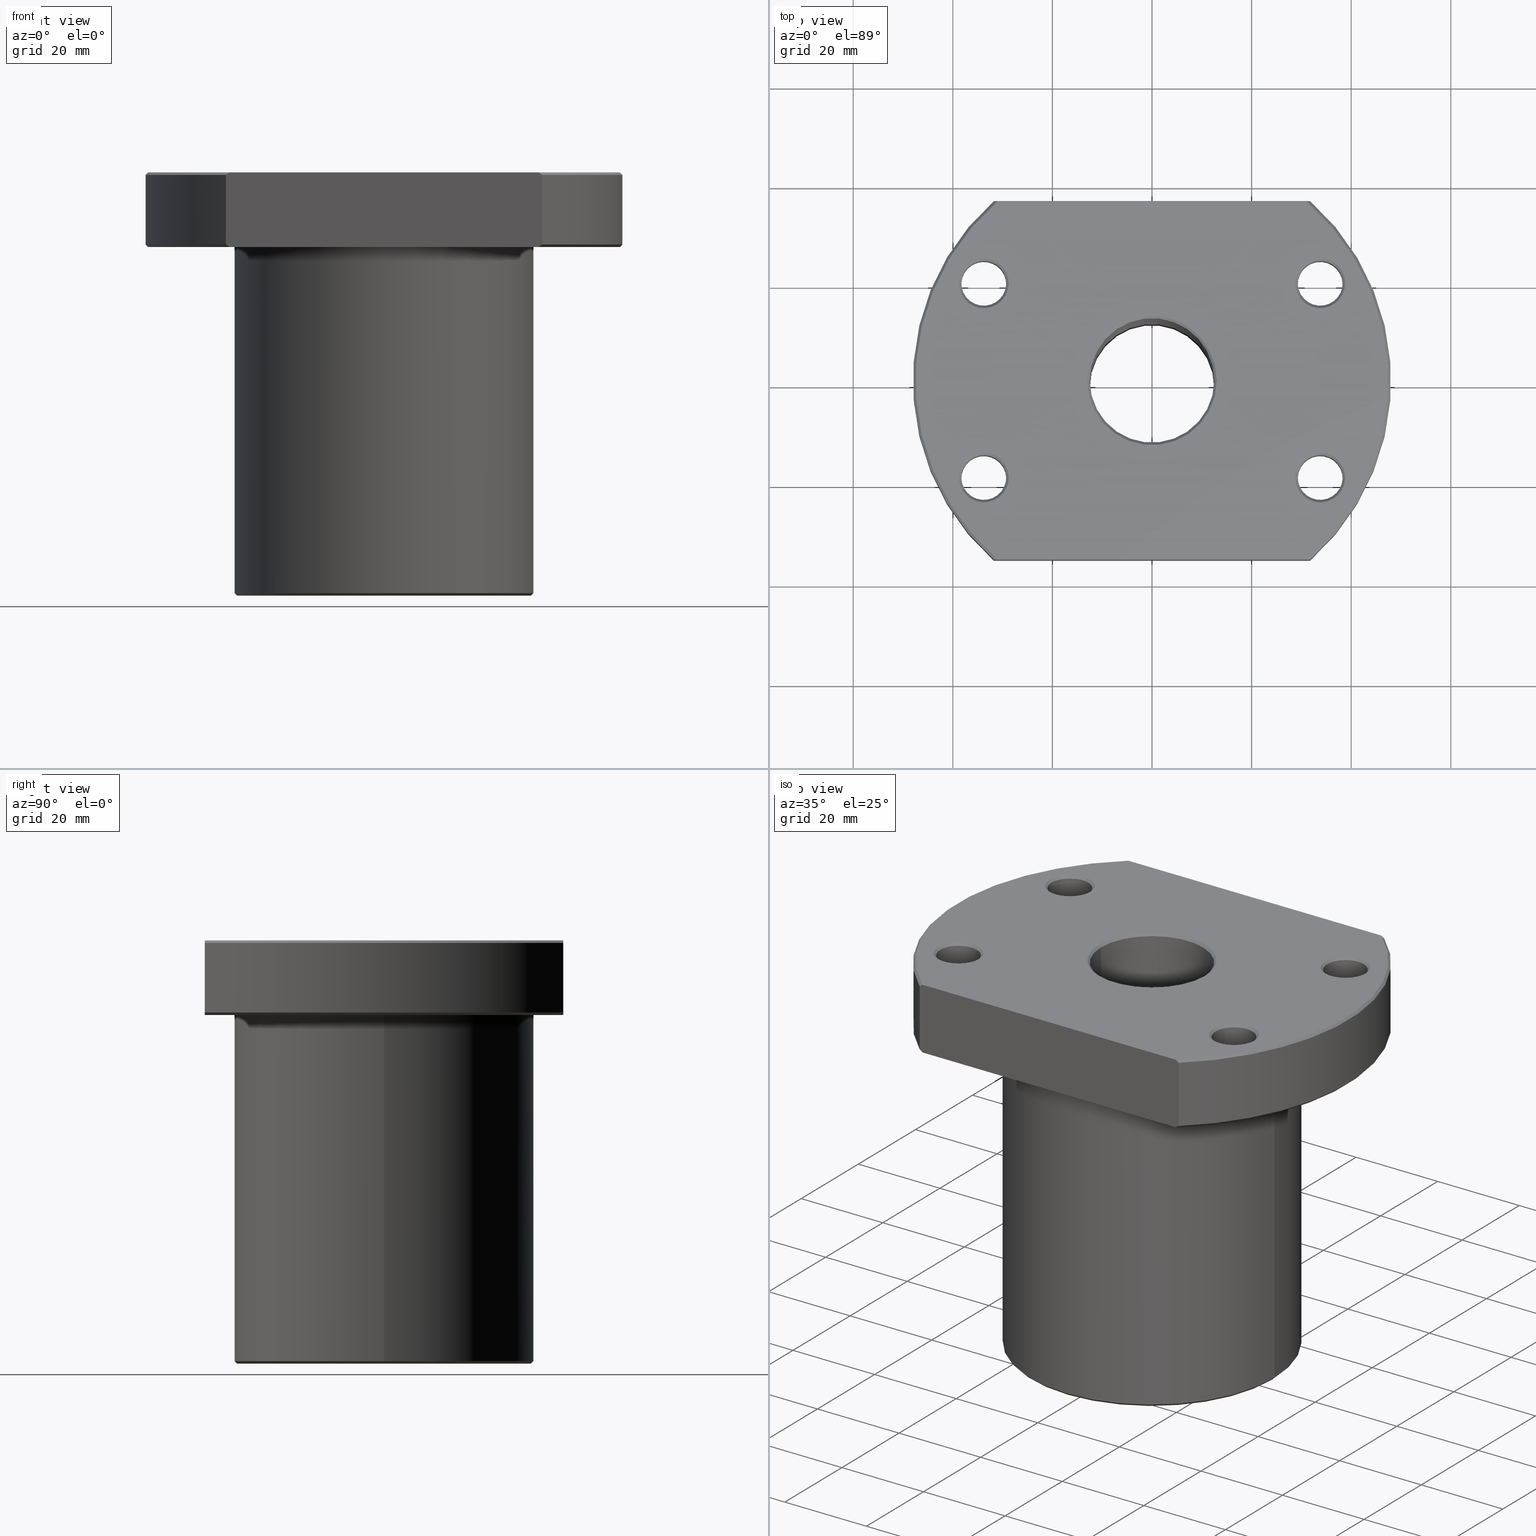
[diagram: canonical four-view strip — front | top / right | iso, engineering-drawing reading convention]
A machine part, canonical four-view strip (front | top / right | iso — engineering-drawing reading convention). The complete STEP part file that produces these views, byte-faithful:
ISO-10303-21;
HEADER;
FILE_DESCRIPTION(('CATIA V5 STEP Exchange'),'2;1');

FILE_NAME('C:\\Documents and Settings\\mycom\\\X2\BC14D0D5\X0\ \X2\D654BA74\X0\\\3D_CAD\\STEP\\STK (STEP)\\2510 STK\\2510 STK.stp','2006-12-14T04:46:42+00:00',('none'),('none'),'CATIA Version 5 Release 16 (IN-10)','CATIA V5 STEP AP214','none');

FILE_SCHEMA(('AUTOMOTIVE_DESIGN { 1 0 10303 214 1 1 1 1 }'));

ENDSEC;
/* file written by CATIA V5R16 */
DATA;
#5=PRODUCT('2510 STK','','',(#2)) ;
#2=PRODUCT_CONTEXT(' ',#1,'mechanical') ;
#1=APPLICATION_CONTEXT('automotive design') ;
#10=PRODUCT_DEFINITION(' ',' ',#6,#3) ;
#3=PRODUCT_DEFINITION_CONTEXT('part definition',#1,' ') ;
#11=PRODUCT_DEFINITION_SHAPE(' ',' ',#10) ;
#1285=MECHANICAL_DESIGN_GEOMETRIC_PRESENTATION_REPRESENTATION(' ',(#203,#227,#308,#332,#30),#17) ;
#20=SHAPE_REPRESENTATION(' ',(#19),#17) ;
#19=AXIS2_PLACEMENT_3D(' ',#18,$,$) ;
#35=AXIS2_PLACEMENT_3D('Cylinder Axis2P3D',#32,#33,#34) ;
#48=AXIS2_PLACEMENT_3D('Circle Axis2P3D',#46,#47,$) ;
#62=AXIS2_PLACEMENT_3D('Circle Axis2P3D',#60,#61,$) ;
#74=AXIS2_PLACEMENT_3D('Circle Axis2P3D',#72,#73,$) ;
#79=AXIS2_PLACEMENT_3D('Circle Axis2P3D',#77,#78,$) ;
#92=AXIS2_PLACEMENT_3D('Cone Axis2P3D',#89,#90,#91) ;
#103=AXIS2_PLACEMENT_3D('Circle Axis2P3D',#101,#102,$) ;
#123=AXIS2_PLACEMENT_3D('Cone Axis2P3D',#120,#121,#122) ;
#127=AXIS2_PLACEMENT_3D('Circle Axis2P3D',#125,#126,$) ;
#140=AXIS2_PLACEMENT_3D('Plane Axis2P3D',#137,#138,#139) ;
#148=AXIS2_PLACEMENT_3D('Circle Axis2P3D',#146,#147,$) ;
#157=AXIS2_PLACEMENT_3D('Circle Axis2P3D',#155,#156,$) ;
#168=AXIS2_PLACEMENT_3D('Cone Axis2P3D',#165,#166,#167) ;
#179=AXIS2_PLACEMENT_3D('Circle Axis2P3D',#177,#178,$) ;
#207=AXIS2_PLACEMENT_3D('Cone Axis2P3D',#204,#205,#206) ;
#211=AXIS2_PLACEMENT_3D('Circle Axis2P3D',#209,#210,$) ;
#231=AXIS2_PLACEMENT_3D('Cylinder Axis2P3D',#228,#229,#230) ;
#235=AXIS2_PLACEMENT_3D('Circle Axis2P3D',#233,#234,$) ;
#261=AXIS2_PLACEMENT_3D('Circle Axis2P3D',#259,#260,$) ;
#274=AXIS2_PLACEMENT_3D('Cone Axis2P3D',#271,#272,#273) ;
#285=AXIS2_PLACEMENT_3D('Circle Axis2P3D',#283,#284,$) ;
#312=AXIS2_PLACEMENT_3D('Cone Axis2P3D',#309,#310,#311) ;
#316=AXIS2_PLACEMENT_3D('Circle Axis2P3D',#314,#315,$) ;
#336=AXIS2_PLACEMENT_3D('Cone Axis2P3D',#333,#334,#335) ;
#340=AXIS2_PLACEMENT_3D('Circle Axis2P3D',#338,#339,$) ;
#357=AXIS2_PLACEMENT_3D('Circle Axis2P3D',#355,#356,$) ;
#378=AXIS2_PLACEMENT_3D('Cylinder Axis2P3D',#375,#376,#377) ;
#396=AXIS2_PLACEMENT_3D('Circle Axis2P3D',#394,#395,$) ;
#409=AXIS2_PLACEMENT_3D('Cone Axis2P3D',#406,#407,#408) ;
#429=AXIS2_PLACEMENT_3D('Circle Axis2P3D',#427,#428,$) ;
#442=AXIS2_PLACEMENT_3D('Cone Axis2P3D',#439,#440,#441) ;
#446=AXIS2_PLACEMENT_3D('Circle Axis2P3D',#444,#445,$) ;
#463=AXIS2_PLACEMENT_3D('Circle Axis2P3D',#461,#462,$) ;
#484=AXIS2_PLACEMENT_3D('Cylinder Axis2P3D',#481,#482,#483) ;
#502=AXIS2_PLACEMENT_3D('Circle Axis2P3D',#500,#501,$) ;
#515=AXIS2_PLACEMENT_3D('Plane Axis2P3D',#512,#513,#514) ;
#554=AXIS2_PLACEMENT_3D('Plane Axis2P3D',#551,#552,#553) ;
#593=AXIS2_PLACEMENT_3D('Cone Axis2P3D',#590,#591,#592) ;
#597=AXIS2_PLACEMENT_3D('Circle Axis2P3D',#595,#596,$) ;
#610=AXIS2_PLACEMENT_3D('Cone Axis2P3D',#607,#608,#609) ;
#623=AXIS2_PLACEMENT_3D('Circle Axis2P3D',#621,#622,$) ;
#637=AXIS2_PLACEMENT_3D('Circle Axis2P3D',#635,#636,$) ;
#650=AXIS2_PLACEMENT_3D('Cone Axis2P3D',#647,#648,#649) ;
#654=AXIS2_PLACEMENT_3D('Circle Axis2P3D',#652,#653,$) ;
#659=AXIS2_PLACEMENT_3D('Circle Axis2P3D',#657,#658,$) ;
#672=AXIS2_PLACEMENT_3D('Cylinder Axis2P3D',#669,#670,#671) ;
#676=AXIS2_PLACEMENT_3D('Circle Axis2P3D',#674,#675,$) ;
#702=AXIS2_PLACEMENT_3D('Circle Axis2P3D',#700,#701,$) ;
#715=AXIS2_PLACEMENT_3D('Cone Axis2P3D',#712,#713,#714) ;
#726=AXIS2_PLACEMENT_3D('Circle Axis2P3D',#724,#725,$) ;
#746=AXIS2_PLACEMENT_3D('Cone Axis2P3D',#743,#744,#745) ;
#750=AXIS2_PLACEMENT_3D('Circle Axis2P3D',#748,#749,$) ;
#763=AXIS2_PLACEMENT_3D('Cone Axis2P3D',#760,#761,#762) ;
#776=AXIS2_PLACEMENT_3D('Circle Axis2P3D',#774,#775,$) ;
#790=AXIS2_PLACEMENT_3D('Circle Axis2P3D',#788,#789,$) ;
#803=AXIS2_PLACEMENT_3D('Cone Axis2P3D',#800,#801,#802) ;
#807=AXIS2_PLACEMENT_3D('Circle Axis2P3D',#805,#806,$) ;
#812=AXIS2_PLACEMENT_3D('Circle Axis2P3D',#810,#811,$) ;
#825=AXIS2_PLACEMENT_3D('Cylinder Axis2P3D',#822,#823,#824) ;
#829=AXIS2_PLACEMENT_3D('Circle Axis2P3D',#827,#828,$) ;
#855=AXIS2_PLACEMENT_3D('Circle Axis2P3D',#853,#854,$) ;
#868=AXIS2_PLACEMENT_3D('Cone Axis2P3D',#865,#866,#867) ;
#879=AXIS2_PLACEMENT_3D('Circle Axis2P3D',#877,#878,$) ;
#899=AXIS2_PLACEMENT_3D('Cone Axis2P3D',#896,#897,#898) ;
#903=AXIS2_PLACEMENT_3D('Circle Axis2P3D',#901,#902,$) ;
#916=AXIS2_PLACEMENT_3D('Cone Axis2P3D',#913,#914,#915) ;
#929=AXIS2_PLACEMENT_3D('Circle Axis2P3D',#927,#928,$) ;
#943=AXIS2_PLACEMENT_3D('Circle Axis2P3D',#941,#942,$) ;
#956=AXIS2_PLACEMENT_3D('Cone Axis2P3D',#953,#954,#955) ;
#960=AXIS2_PLACEMENT_3D('Circle Axis2P3D',#958,#959,$) ;
#965=AXIS2_PLACEMENT_3D('Circle Axis2P3D',#963,#964,$) ;
#978=AXIS2_PLACEMENT_3D('Cylinder Axis2P3D',#975,#976,#977) ;
#982=AXIS2_PLACEMENT_3D('Circle Axis2P3D',#980,#981,$) ;
#1008=AXIS2_PLACEMENT_3D('Circle Axis2P3D',#1006,#1007,$) ;
#1021=AXIS2_PLACEMENT_3D('Cone Axis2P3D',#1018,#1019,#1020) ;
#1032=AXIS2_PLACEMENT_3D('Circle Axis2P3D',#1030,#1031,$) ;
#1052=AXIS2_PLACEMENT_3D('Cone Axis2P3D',#1049,#1050,#1051) ;
#1056=AXIS2_PLACEMENT_3D('Circle Axis2P3D',#1054,#1055,$) ;
#1069=AXIS2_PLACEMENT_3D('Plane Axis2P3D',#1066,#1067,#1068) ;
#1079=AXIS2_PLACEMENT_3D('Circle Axis2P3D',#1077,#1078,$) ;
#1088=AXIS2_PLACEMENT_3D('Circle Axis2P3D',#1086,#1087,$) ;
#1115=AXIS2_PLACEMENT_3D('Cone Axis2P3D',#1112,#1113,#1114) ;
#1126=AXIS2_PLACEMENT_3D('Circle Axis2P3D',#1124,#1125,$) ;
#1146=AXIS2_PLACEMENT_3D('Cone Axis2P3D',#1143,#1144,#1145) ;
#1150=AXIS2_PLACEMENT_3D('Circle Axis2P3D',#1148,#1149,$) ;
#1163=AXIS2_PLACEMENT_3D('Plane Axis2P3D',#1160,#1161,#1162) ;
#1173=AXIS2_PLACEMENT_3D('Circle Axis2P3D',#1171,#1172,$) ;
#1182=AXIS2_PLACEMENT_3D('Circle Axis2P3D',#1180,#1181,$) ;
#1209=AXIS2_PLACEMENT_3D('Cylinder Axis2P3D',#1206,#1207,#1208) ;
#1213=AXIS2_PLACEMENT_3D('Circle Axis2P3D',#1211,#1212,$) ;
#1239=AXIS2_PLACEMENT_3D('Circle Axis2P3D',#1237,#1238,$) ;
#1252=AXIS2_PLACEMENT_3D('Cone Axis2P3D',#1249,#1250,#1251) ;
#1274=AXIS2_PLACEMENT_3D('Cone Axis2P3D',#1271,#1272,#1273) ;
#18=CARTESIAN_POINT(' ',(0.,0.,0.)) ;
#32=CARTESIAN_POINT('Axis2P3D Location',(0.,0.,35.)) ;
#37=CARTESIAN_POINT('Line Origine',(-30.,1.6996495357E-014,35.)) ;
#41=CARTESIAN_POINT('Vertex',(-30.,1.6996495357E-014,0.5)) ;
#43=CARTESIAN_POINT('Vertex',(-30.,1.6996495357E-014,70.)) ;
#46=CARTESIAN_POINT('Axis2P3D Location',(0.,0.,70.)) ;
#50=CARTESIAN_POINT('Vertex',(30.,0.,70.)) ;
#53=CARTESIAN_POINT('Line Origine',(30.,0.,35.)) ;
#57=CARTESIAN_POINT('Vertex',(30.,-3.39929907139E-014,0.5)) ;
#60=CARTESIAN_POINT('Axis2P3D Location',(0.,0.,0.5)) ;
#72=CARTESIAN_POINT('Axis2P3D Location',(0.,0.,70.)) ;
#77=CARTESIAN_POINT('Axis2P3D Location',(0.,0.,0.5)) ;
#89=CARTESIAN_POINT('Axis2P3D Location',(2.07635842647E-013,-4.26325641456E-013,-29.5)) ;
#94=CARTESIAN_POINT('Line Origine',(29.75,5.46556973408E-015,0.25)) ;
#98=CARTESIAN_POINT('Vertex',(29.5,-6.41778568223E-015,0.)) ;
#101=CARTESIAN_POINT('Axis2P3D Location',(1.33670224216E-015,-7.1054273576E-015,-2.09610107049E-013)) ;
#105=CARTESIAN_POINT('Vertex',(-29.5,8.14666918968E-008,0.)) ;
#108=CARTESIAN_POINT('Line Origine',(-29.75,8.21570781859E-008,0.25)) ;
#120=CARTESIAN_POINT('Axis2P3D Location',(2.3669954885E-013,-4.19220214098E-013,-29.5)) ;
#125=CARTESIAN_POINT('Axis2P3D Location',(8.88178419698E-016,4.2914033244E-027,3.01980662698E-013)) ;
#137=CARTESIAN_POINT('Axis2P3D Location',(0.,0.,0.)) ;
#146=CARTESIAN_POINT('Axis2P3D Location',(0.,1.55431223448E-015,0.)) ;
#150=CARTESIAN_POINT('Vertex',(-13.,1.17280859284E-007,0.)) ;
#152=CARTESIAN_POINT('Vertex',(13.,9.91665517064E-015,0.)) ;
#155=CARTESIAN_POINT('Axis2P3D Location',(3.5527136788E-015,1.11022302463E-015,0.)) ;
#165=CARTESIAN_POINT('Axis2P3D Location',(-3.48610029732E-014,4.61852778244E-014,13.)) ;
#170=CARTESIAN_POINT('Line Origine',(-12.75,-3.33066907388E-015,0.25)) ;
#174=CARTESIAN_POINT('Vertex',(-12.5,1.53075794228E-015,0.5)) ;
#177=CARTESIAN_POINT('Axis2P3D Location',(-1.55431223448E-015,1.7763568394E-015,0.5)) ;
#181=CARTESIAN_POINT('Vertex',(12.5,-3.06151588456E-015,0.5)) ;
#184=CARTESIAN_POINT('Line Origine',(12.75,-1.3211653993E-014,0.25)) ;
#204=CARTESIAN_POINT('Axis2P3D Location',(-7.58282325819E-014,-8.881784197E-014,13.)) ;
#209=CARTESIAN_POINT('Axis2P3D Location',(-8.881784197E-016,5.30114528309E-028,0.5)) ;
#228=CARTESIAN_POINT('Axis2P3D Location',(0.,0.,35.)) ;
#233=CARTESIAN_POINT('Axis2P3D Location',(0.,0.,84.5)) ;
#237=CARTESIAN_POINT('Vertex',(12.5,-3.06151588456E-015,84.5)) ;
#239=CARTESIAN_POINT('Vertex',(-12.5,1.53075794228E-015,84.5)) ;
#242=CARTESIAN_POINT('Line Origine',(-12.5,1.53075794228E-015,70.)) ;
#247=CARTESIAN_POINT('Line Origine',(12.5,0.,70.)) ;
#259=CARTESIAN_POINT('Axis2P3D Location',(0.,0.,84.5)) ;
#271=CARTESIAN_POINT('Axis2P3D Location',(-3.48610029732E-014,4.61852778244E-014,72.)) ;
#276=CARTESIAN_POINT('Line Origine',(-12.75,3.82071878025E-007,84.75)) ;
#280=CARTESIAN_POINT('Vertex',(-13.,1.17280859284E-007,85.)) ;
#283=CARTESIAN_POINT('Axis2P3D Location',(-2.22044604925E-016,1.51461293802E-028,85.)) ;
#287=CARTESIAN_POINT('Vertex',(13.,9.91665517064E-015,85.)) ;
#290=CARTESIAN_POINT('Line Origine',(12.75,3.77475828373E-015,84.75)) ;
#309=CARTESIAN_POINT('Axis2P3D Location',(-7.58282325819E-014,-8.881784197E-014,72.)) ;
#314=CARTESIAN_POINT('Axis2P3D Location',(2.10942374679E-015,3.5527136788E-015,85.)) ;
#333=CARTESIAN_POINT('Axis2P3D Location',(-6.8212102633E-013,8.76974717213E-014,132.5)) ;
#338=CARTESIAN_POINT('Axis2P3D Location',(-7.10542735761E-015,2.73531379339E-015,85.)) ;
#342=CARTESIAN_POINT('Vertex',(30.9879008647,-36.,85.)) ;
#344=CARTESIAN_POINT('Vertex',(30.9879008647,36.,85.)) ;
#348=CARTESIAN_POINT('Control Point',(31.7490157328,-36.,84.5)) ;
#349=CARTESIAN_POINT('Control Point',(31.4944055499,-36.,84.6684088063)) ;
#350=CARTESIAN_POINT('Control Point',(31.240690937,-35.9999996902,84.8350858391)) ;
#351=CARTESIAN_POINT('Control Point',(30.9879012246,-35.9999996902,85.)) ;
#352=CARTESIAN_POINT('Vertex',(31.7490157328,-36.,84.5)) ;
#355=CARTESIAN_POINT('Axis2P3D Location',(-6.3613743397E-027,1.84097528888E-015,84.5)) ;
#359=CARTESIAN_POINT('Vertex',(31.7490157328,36.,84.5)) ;
#363=CARTESIAN_POINT('Control Point',(31.7490157328,36.,84.5)) ;
#364=CARTESIAN_POINT('Control Point',(31.4944053421,36.,84.6684089437)) ;
#365=CARTESIAN_POINT('Control Point',(31.2406904689,36.0000002701,84.8350857086)) ;
#366=CARTESIAN_POINT('Control Point',(30.9879005509,36.0000002701,85.)) ;
#375=CARTESIAN_POINT('Axis2P3D Location',(0.,0.,77.5)) ;
#380=CARTESIAN_POINT('Line Origine',(31.7490157328,36.,77.5)) ;
#384=CARTESIAN_POINT('Vertex',(31.7490157328,36.,70.5)) ;
#387=CARTESIAN_POINT('Line Origine',(31.7490157328,-36.,77.5)) ;
#391=CARTESIAN_POINT('Vertex',(31.7490157328,-36.,70.5)) ;
#394=CARTESIAN_POINT('Axis2P3D Location',(0.,0.,70.5)) ;
#406=CARTESIAN_POINT('Axis2P3D Location',(-6.8212102633E-013,8.76974717213E-014,22.5)) ;
#412=CARTESIAN_POINT('Control Point',(31.7490160469,35.9999997229,70.5)) ;
#413=CARTESIAN_POINT('Control Point',(31.4944056566,35.9999997229,70.3315910548)) ;
#414=CARTESIAN_POINT('Control Point',(31.2406907825,36.,70.1649142929)) ;
#415=CARTESIAN_POINT('Control Point',(30.9879008647,36.,70.)) ;
#416=CARTESIAN_POINT('Vertex',(30.9879008647,36.,70.)) ;
#420=CARTESIAN_POINT('Control Point',(31.7490153732,-36.0000003171,70.5)) ;
#421=CARTESIAN_POINT('Control Point',(31.4944051898,-36.0000003171,70.3315911953)) ;
#422=CARTESIAN_POINT('Control Point',(31.2406905776,-36.,70.1649141593)) ;
#423=CARTESIAN_POINT('Control Point',(30.9879008647,-36.,70.)) ;
#424=CARTESIAN_POINT('Vertex',(30.9879008647,-36.,70.)) ;
#427=CARTESIAN_POINT('Axis2P3D Location',(-7.10542735761E-015,2.73531379339E-015,70.)) ;
#439=CARTESIAN_POINT('Axis2P3D Location',(-1.35003119794E-012,-4.84964655785E-013,132.5)) ;
#444=CARTESIAN_POINT('Axis2P3D Location',(3.73604524713E-026,-5.65898131873E-015,85.)) ;
#448=CARTESIAN_POINT('Vertex',(-30.9879008647,36.,85.)) ;
#450=CARTESIAN_POINT('Vertex',(-30.9879008647,-36.,85.)) ;
#454=CARTESIAN_POINT('Control Point',(-31.7490157328,36.,84.5)) ;
#455=CARTESIAN_POINT('Control Point',(-31.4944055499,36.,84.6684088063)) ;
#456=CARTESIAN_POINT('Control Point',(-31.2406909371,35.9999996902,84.8350858391)) ;
#457=CARTESIAN_POINT('Control Point',(-30.9879012246,35.9999996902,85.)) ;
#458=CARTESIAN_POINT('Vertex',(-31.7490157328,36.,84.5)) ;
#461=CARTESIAN_POINT('Axis2P3D Location',(1.42108547152E-014,-6.13658429614E-016,84.5)) ;
#465=CARTESIAN_POINT('Vertex',(-31.7490157328,-36.,84.5)) ;
#469=CARTESIAN_POINT('Control Point',(-31.7490157328,-36.,84.5)) ;
#470=CARTESIAN_POINT('Control Point',(-31.4944053421,-36.,84.6684089437)) ;
#471=CARTESIAN_POINT('Control Point',(-31.2406904689,-36.0000002702,84.8350857086)) ;
#472=CARTESIAN_POINT('Control Point',(-30.9879005508,-36.0000002702,85.)) ;
#481=CARTESIAN_POINT('Axis2P3D Location',(0.,0.,77.5)) ;
#486=CARTESIAN_POINT('Line Origine',(-31.7490157328,-36.,77.5)) ;
#490=CARTESIAN_POINT('Vertex',(-31.7490157328,-36.,70.5)) ;
#493=CARTESIAN_POINT('Line Origine',(-31.7490157328,36.,77.5)) ;
#497=CARTESIAN_POINT('Vertex',(-31.7490157328,36.,70.5)) ;
#500=CARTESIAN_POINT('Axis2P3D Location',(0.,0.,70.5)) ;
#512=CARTESIAN_POINT('Axis2P3D Location',(-31.7490157328,36.,70.)) ;
#518=CARTESIAN_POINT('Control Point',(-31.7490157328,36.,70.5)) ;
#519=CARTESIAN_POINT('Control Point',(-31.6118150229,36.,70.4092502615)) ;
#520=CARTESIAN_POINT('Control Point',(-31.4748322514,36.,70.3189204184)) ;
#521=CARTESIAN_POINT('Control Point',(-31.3380632741,36.,70.2290086081)) ;
#522=CARTESIAN_POINT('Control Point',(-31.1860298765,36.,70.1293718721)) ;
#523=CARTESIAN_POINT('Control Point',(-31.0342717833,36.,70.0302621435)) ;
#524=CARTESIAN_POINT('Control Point',(-31.0188119427,36.,70.0201692822)) ;
#525=CARTESIAN_POINT('Control Point',(-31.0033549718,36.,70.0100819019)) ;
#526=CARTESIAN_POINT('Control Point',(-30.9879008647,36.,70.)) ;
#527=CARTESIAN_POINT('Vertex',(-30.9879008647,36.,70.)) ;
#530=CARTESIAN_POINT('Line Origine',(-3.5527136788E-015,36.,85.)) ;
#535=CARTESIAN_POINT('Line Origine',(-3.5527136788E-015,36.,70.)) ;
#551=CARTESIAN_POINT('Axis2P3D Location',(-31.7490157328,-36.,70.)) ;
#556=CARTESIAN_POINT('Line Origine',(1.06581410364E-014,-36.,70.)) ;
#560=CARTESIAN_POINT('Vertex',(-30.9879008647,-36.,70.)) ;
#563=CARTESIAN_POINT('Line Origine',(1.06581410364E-014,-36.,85.)) ;
#569=CARTESIAN_POINT('Control Point',(-31.7490157328,-36.,70.5)) ;
#570=CARTESIAN_POINT('Control Point',(-31.6118150242,-36.,70.4092502605)) ;
#571=CARTESIAN_POINT('Control Point',(-31.474832254,-36.,70.3189204163)) ;
#572=CARTESIAN_POINT('Control Point',(-31.3380638957,-36.,70.2290090162)) ;
#573=CARTESIAN_POINT('Control Point',(-31.186030374,-36.,70.1293721978)) ;
#574=CARTESIAN_POINT('Control Point',(-31.0342721571,-36.,70.0302623876)) ;
#575=CARTESIAN_POINT('Control Point',(-31.0188121919,-36.,70.0201694448)) ;
#576=CARTESIAN_POINT('Control Point',(-31.0033550964,-36.,70.0100819831)) ;
#577=CARTESIAN_POINT('Control Point',(-30.9879008647,-36.,70.)) ;
#590=CARTESIAN_POINT('Axis2P3D Location',(-1.35003119794E-012,-4.84964655785E-013,22.5)) ;
#595=CARTESIAN_POINT('Axis2P3D Location',(3.73604524713E-026,-5.65898131873E-015,70.)) ;
#607=CARTESIAN_POINT('Axis2P3D Location',(-33.7749907476,19.5,75.)) ;
#612=CARTESIAN_POINT('Line Origine',(-37.8886114156,21.875,70.25)) ;
#616=CARTESIAN_POINT('Vertex',(-38.1051177658,22.0000000012,70.)) ;
#618=CARTESIAN_POINT('Vertex',(-37.6721050646,21.75,70.5)) ;
#621=CARTESIAN_POINT('Axis2P3D Location',(-33.7749907476,19.5,70.5)) ;
#625=CARTESIAN_POINT('Vertex',(-29.8778764306,17.25,70.5)) ;
#628=CARTESIAN_POINT('Line Origine',(-29.6613700796,17.125,70.25)) ;
#632=CARTESIAN_POINT('Vertex',(-29.4448637287,17.,70.)) ;
#635=CARTESIAN_POINT('Axis2P3D Location',(-33.7749907476,19.5,70.)) ;
#647=CARTESIAN_POINT('Axis2P3D Location',(-33.7749907476,19.5,75.)) ;
#652=CARTESIAN_POINT('Axis2P3D Location',(-33.7749907476,19.5,70.5)) ;
#657=CARTESIAN_POINT('Axis2P3D Location',(-33.7749907476,19.5,70.)) ;
#669=CARTESIAN_POINT('Axis2P3D Location',(-33.7749907476,19.5,77.5)) ;
#674=CARTESIAN_POINT('Axis2P3D Location',(-33.7749907476,19.5,84.5)) ;
#678=CARTESIAN_POINT('Vertex',(-37.6721050646,21.75,84.5)) ;
#680=CARTESIAN_POINT('Vertex',(-29.8778764306,17.25,84.5)) ;
#683=CARTESIAN_POINT('Line Origine',(-29.8778764306,17.25,77.5)) ;
#688=CARTESIAN_POINT('Line Origine',(-37.6721050646,21.75,77.5)) ;
#700=CARTESIAN_POINT('Axis2P3D Location',(-33.7749907476,19.5,84.5)) ;
#712=CARTESIAN_POINT('Axis2P3D Location',(-33.7749907476,19.5,80.)) ;
#717=CARTESIAN_POINT('Line Origine',(-37.8886113301,21.8750001481,84.75)) ;
#721=CARTESIAN_POINT('Vertex',(-38.1051177658,22.0000000012,85.)) ;
#724=CARTESIAN_POINT('Axis2P3D Location',(-33.7749907476,19.5,85.)) ;
#728=CARTESIAN_POINT('Vertex',(-29.4448637287,17.,85.)) ;
#731=CARTESIAN_POINT('Line Origine',(-29.6613700796,17.125,84.75)) ;
#743=CARTESIAN_POINT('Axis2P3D Location',(-33.7749907476,19.5,80.)) ;
#748=CARTESIAN_POINT('Axis2P3D Location',(-33.7749907476,19.5,85.)) ;
#760=CARTESIAN_POINT('Axis2P3D Location',(-33.7749907476,-19.5,75.)) ;
#765=CARTESIAN_POINT('Line Origine',(-37.8886114156,-21.875,70.25)) ;
#769=CARTESIAN_POINT('Vertex',(-38.1051177672,-21.9999999988,70.)) ;
#771=CARTESIAN_POINT('Vertex',(-37.6721050646,-21.75,70.5)) ;
#774=CARTESIAN_POINT('Axis2P3D Location',(-33.7749907476,-19.5,70.5)) ;
#778=CARTESIAN_POINT('Vertex',(-29.8778764306,-17.25,70.5)) ;
#781=CARTESIAN_POINT('Line Origine',(-29.6613700796,-17.125,70.25)) ;
#785=CARTESIAN_POINT('Vertex',(-29.4448637287,-17.,70.)) ;
#788=CARTESIAN_POINT('Axis2P3D Location',(-33.7749907476,-19.5,70.)) ;
#800=CARTESIAN_POINT('Axis2P3D Location',(-33.7749907476,-19.5,75.)) ;
#805=CARTESIAN_POINT('Axis2P3D Location',(-33.7749907476,-19.5,70.5)) ;
#810=CARTESIAN_POINT('Axis2P3D Location',(-33.7749907476,-19.5,70.)) ;
#822=CARTESIAN_POINT('Axis2P3D Location',(-33.7749907476,-19.5,77.5)) ;
#827=CARTESIAN_POINT('Axis2P3D Location',(-33.7749907476,-19.5,84.5)) ;
#831=CARTESIAN_POINT('Vertex',(-37.6721050646,-21.75,84.5)) ;
#833=CARTESIAN_POINT('Vertex',(-29.8778764306,-17.25,84.5)) ;
#836=CARTESIAN_POINT('Line Origine',(-29.8778764306,-17.25,77.5)) ;
#841=CARTESIAN_POINT('Line Origine',(-37.6721050646,-21.75,77.5)) ;
#853=CARTESIAN_POINT('Axis2P3D Location',(-33.7749907476,-19.5,84.5)) ;
#865=CARTESIAN_POINT('Axis2P3D Location',(-33.7749907476,-19.5,80.)) ;
#870=CARTESIAN_POINT('Line Origine',(-37.8886115011,-21.8749998519,84.75)) ;
#874=CARTESIAN_POINT('Vertex',(-38.1051177672,-21.9999999988,85.)) ;
#877=CARTESIAN_POINT('Axis2P3D Location',(-33.7749907476,-19.5,85.)) ;
#881=CARTESIAN_POINT('Vertex',(-29.4448637287,-17.,85.)) ;
#884=CARTESIAN_POINT('Line Origine',(-29.6613700796,-17.125,84.75)) ;
#896=CARTESIAN_POINT('Axis2P3D Location',(-33.7749907476,-19.5,80.)) ;
#901=CARTESIAN_POINT('Axis2P3D Location',(-33.7749907476,-19.5,85.)) ;
#913=CARTESIAN_POINT('Axis2P3D Location',(33.7749907476,19.5,75.)) ;
#918=CARTESIAN_POINT('Line Origine',(37.8886114156,21.875,70.25)) ;
#922=CARTESIAN_POINT('Vertex',(38.1051177672,21.9999999988,70.)) ;
#924=CARTESIAN_POINT('Vertex',(37.6721050646,21.75,70.5)) ;
#927=CARTESIAN_POINT('Axis2P3D Location',(33.7749907476,19.5,70.5)) ;
#931=CARTESIAN_POINT('Vertex',(29.8778764306,17.25,70.5)) ;
#934=CARTESIAN_POINT('Line Origine',(29.6613700796,17.125,70.25)) ;
#938=CARTESIAN_POINT('Vertex',(29.4448637287,17.,70.)) ;
#941=CARTESIAN_POINT('Axis2P3D Location',(33.7749907476,19.5,70.)) ;
#953=CARTESIAN_POINT('Axis2P3D Location',(33.7749907476,19.5,75.)) ;
#958=CARTESIAN_POINT('Axis2P3D Location',(33.7749907476,19.5,70.5)) ;
#963=CARTESIAN_POINT('Axis2P3D Location',(33.7749907476,19.5,70.)) ;
#975=CARTESIAN_POINT('Axis2P3D Location',(33.7749907476,19.5,77.5)) ;
#980=CARTESIAN_POINT('Axis2P3D Location',(33.7749907476,19.5,84.5)) ;
#984=CARTESIAN_POINT('Vertex',(37.6721050646,21.75,84.5)) ;
#986=CARTESIAN_POINT('Vertex',(29.8778764306,17.25,84.5)) ;
#989=CARTESIAN_POINT('Line Origine',(29.8778764306,17.25,77.5)) ;
#994=CARTESIAN_POINT('Line Origine',(37.6721050646,21.75,77.5)) ;
#1006=CARTESIAN_POINT('Axis2P3D Location',(33.7749907476,19.5,84.5)) ;
#1018=CARTESIAN_POINT('Axis2P3D Location',(33.7749907476,19.5,80.)) ;
#1023=CARTESIAN_POINT('Line Origine',(37.8886115011,21.8749998519,84.75)) ;
#1027=CARTESIAN_POINT('Vertex',(38.1051177672,21.9999999988,85.)) ;
#1030=CARTESIAN_POINT('Axis2P3D Location',(33.7749907476,19.5,85.)) ;
#1034=CARTESIAN_POINT('Vertex',(29.4448637287,17.,85.)) ;
#1037=CARTESIAN_POINT('Line Origine',(29.6613700796,17.125,84.75)) ;
#1049=CARTESIAN_POINT('Axis2P3D Location',(33.7749907476,19.5,80.)) ;
#1054=CARTESIAN_POINT('Axis2P3D Location',(33.7749907476,19.5,85.)) ;
#1066=CARTESIAN_POINT('Axis2P3D Location',(0.,0.,70.)) ;
#1077=CARTESIAN_POINT('Axis2P3D Location',(33.7749907476,-19.5,70.)) ;
#1081=CARTESIAN_POINT('Vertex',(38.1051177658,-22.0000000012,70.)) ;
#1083=CARTESIAN_POINT('Vertex',(29.4448637287,-17.,70.)) ;
#1086=CARTESIAN_POINT('Axis2P3D Location',(33.7749907476,-19.5,70.)) ;
#1112=CARTESIAN_POINT('Axis2P3D Location',(33.7749907476,-19.5,75.)) ;
#1117=CARTESIAN_POINT('Line Origine',(37.8886114156,-21.875,70.25)) ;
#1121=CARTESIAN_POINT('Vertex',(37.6721050646,-21.75,70.5)) ;
#1124=CARTESIAN_POINT('Axis2P3D Location',(33.7749907476,-19.5,70.5)) ;
#1128=CARTESIAN_POINT('Vertex',(29.8778764306,-17.25,70.5)) ;
#1131=CARTESIAN_POINT('Line Origine',(29.6613700796,-17.125,70.25)) ;
#1143=CARTESIAN_POINT('Axis2P3D Location',(33.7749907476,-19.5,75.)) ;
#1148=CARTESIAN_POINT('Axis2P3D Location',(33.7749907476,-19.5,70.5)) ;
#1160=CARTESIAN_POINT('Axis2P3D Location',(0.,0.,85.)) ;
#1171=CARTESIAN_POINT('Axis2P3D Location',(33.7749907476,-19.5,85.)) ;
#1175=CARTESIAN_POINT('Vertex',(29.4448637287,-17.,85.)) ;
#1177=CARTESIAN_POINT('Vertex',(38.1051177658,-22.0000000012,85.)) ;
#1180=CARTESIAN_POINT('Axis2P3D Location',(33.7749907476,-19.5,85.)) ;
#1206=CARTESIAN_POINT('Axis2P3D Location',(33.7749907476,-19.5,77.5)) ;
#1211=CARTESIAN_POINT('Axis2P3D Location',(33.7749907476,-19.5,84.5)) ;
#1215=CARTESIAN_POINT('Vertex',(37.6721050646,-21.75,84.5)) ;
#1217=CARTESIAN_POINT('Vertex',(29.8778764306,-17.25,84.5)) ;
#1220=CARTESIAN_POINT('Line Origine',(29.8778764306,-17.25,77.5)) ;
#1225=CARTESIAN_POINT('Line Origine',(37.6721050646,-21.75,77.5)) ;
#1237=CARTESIAN_POINT('Axis2P3D Location',(33.7749907476,-19.5,84.5)) ;
#1249=CARTESIAN_POINT('Axis2P3D Location',(33.7749907476,-19.5,80.)) ;
#1254=CARTESIAN_POINT('Line Origine',(37.8886113301,-21.8750001481,84.75)) ;
#1259=CARTESIAN_POINT('Line Origine',(29.6613700796,-17.125,84.75)) ;
#1271=CARTESIAN_POINT('Axis2P3D Location',(33.7749907476,-19.5,80.)) ;
#33=DIRECTION('Axis2P3D Direction',(0.,0.,1.)) ;
#34=DIRECTION('Axis2P3D XDirection',(1.,0.,0.)) ;
#38=DIRECTION('Vector Direction',(0.,0.,1.)) ;
#47=DIRECTION('Axis2P3D Direction',(0.,0.,1.)) ;
#54=DIRECTION('Vector Direction',(0.,0.,1.)) ;
#61=DIRECTION('Axis2P3D Direction',(0.,0.,1.)) ;
#73=DIRECTION('Axis2P3D Direction',(0.,0.,1.)) ;
#78=DIRECTION('Axis2P3D Direction',(0.,0.,1.)) ;
#90=DIRECTION('Axis2P3D Direction',(-6.99319120015E-015,1.42108547152E-014,1.)) ;
#91=DIRECTION('Axis2P3D XDirection',(1.,6.12303176912E-017,6.98057178462E-015)) ;
#95=DIRECTION('Vector Direction',(0.707106781187,1.02629409576E-014,0.707106781187)) ;
#102=DIRECTION('Axis2P3D Direction',(-8.70135148874E-031,1.42108547152E-014,1.)) ;
#109=DIRECTION('Vector Direction',(-0.707106781187,1.95274381733E-009,0.707106781187)) ;
#121=DIRECTION('Axis2P3D Direction',(-7.9936057773E-015,1.42108547152E-014,1.)) ;
#122=DIRECTION('Axis2P3D XDirection',(-0.985530354359,0.169499028422,-1.02732943245E-014)) ;
#126=DIRECTION('Axis2P3D Direction',(2.14421699506E-015,1.24672746188E-014,1.)) ;
#138=DIRECTION('Axis2P3D Direction',(0.,0.,1.)) ;
#139=DIRECTION('Axis2P3D XDirection',(1.,0.,0.)) ;
#147=DIRECTION('Axis2P3D Direction',(0.,0.,1.)) ;
#156=DIRECTION('Axis2P3D Direction',(0.,0.,1.)) ;
#166=DIRECTION('Axis2P3D Direction',(2.6645352591E-015,-3.5527136788E-015,-1.)) ;
#167=DIRECTION('Axis2P3D XDirection',(-0.994864896466,0.101211846044,-3.02930473672E-015)) ;
#171=DIRECTION('Vector Direction',(-0.707106781187,-2.51214793389E-015,-0.707106781187)) ;
#178=DIRECTION('Axis2P3D Direction',(3.3043517931E-016,3.2480225715E-015,1.)) ;
#185=DIRECTION('Vector Direction',(0.707106781187,-3.4542034091E-015,-0.707106781187)) ;
#205=DIRECTION('Axis2P3D Direction',(5.99520433298E-015,7.1054273576E-015,-1.)) ;
#206=DIRECTION('Axis2P3D XDirection',(1.,-2.14410362128E-016,6.05860947344E-015)) ;
#210=DIRECTION('Axis2P3D Direction',(-1.52347725282E-030,-7.1054273576E-015,1.)) ;
#229=DIRECTION('Axis2P3D Direction',(0.,0.,1.)) ;
#230=DIRECTION('Axis2P3D XDirection',(1.,0.,0.)) ;
#234=DIRECTION('Axis2P3D Direction',(0.,0.,1.)) ;
#243=DIRECTION('Vector Direction',(0.,0.,1.)) ;
#248=DIRECTION('Vector Direction',(0.,0.,1.)) ;
#260=DIRECTION('Axis2P3D Direction',(0.,0.,1.)) ;
#272=DIRECTION('Axis2P3D Direction',(2.6645352591E-015,-3.5527136788E-015,1.)) ;
#273=DIRECTION('Axis2P3D XDirection',(-0.994864896466,0.101211846044,3.02930473672E-015)) ;
#277=DIRECTION('Vector Direction',(-0.707106781187,2.11894575423E-008,0.707106781187)) ;
#284=DIRECTION('Axis2P3D Direction',(-3.3043517931E-016,-3.2480225715E-015,1.)) ;
#291=DIRECTION('Vector Direction',(0.707106781187,-2.51214793389E-015,0.707106781187)) ;
#310=DIRECTION('Axis2P3D Direction',(5.99520433298E-015,7.1054273576E-015,1.)) ;
#311=DIRECTION('Axis2P3D XDirection',(1.,-2.14410362128E-016,-6.05860947344E-015)) ;
#315=DIRECTION('Axis2P3D Direction',(1.52347725282E-030,7.1054273576E-015,1.)) ;
#334=DIRECTION('Axis2P3D Direction',(1.42108547152E-014,-1.78867700901E-015,-1.)) ;
#335=DIRECTION('Axis2P3D XDirection',(-0.73393117941,-0.679223839313,-9.21962311176E-015)) ;
#339=DIRECTION('Axis2P3D Direction',(-7.44776895309E-015,8.04764134493E-015,1.)) ;
#356=DIRECTION('Axis2P3D Direction',(-7.44776895309E-015,8.04764134493E-015,1.)) ;
#376=DIRECTION('Axis2P3D Direction',(0.,0.,1.)) ;
#377=DIRECTION('Axis2P3D XDirection',(0.661437827766,-0.75,0.)) ;
#381=DIRECTION('Vector Direction',(0.,0.,1.)) ;
#388=DIRECTION('Vector Direction',(0.,0.,1.)) ;
#395=DIRECTION('Axis2P3D Direction',(0.,0.,1.)) ;
#407=DIRECTION('Axis2P3D Direction',(1.42108547152E-014,-1.78867700901E-015,1.)) ;
#408=DIRECTION('Axis2P3D XDirection',(-0.73393117941,-0.679223839313,9.21962311176E-015)) ;
#428=DIRECTION('Axis2P3D Direction',(7.44776895309E-015,-8.04764134493E-015,1.)) ;
#440=DIRECTION('Axis2P3D Direction',(2.84217094304E-014,1.00906457782E-014,-1.)) ;
#441=DIRECTION('Axis2P3D XDirection',(0.73393117939,0.679223839334,2.76588693353E-014)) ;
#445=DIRECTION('Axis2P3D Direction',(-8.08199143973E-015,8.7329465865E-015,1.)) ;
#462=DIRECTION('Axis2P3D Direction',(-8.08199143973E-015,8.7329465865E-015,1.)) ;
#482=DIRECTION('Axis2P3D Direction',(0.,0.,1.)) ;
#483=DIRECTION('Axis2P3D XDirection',(-0.661437827766,0.75,0.)) ;
#487=DIRECTION('Vector Direction',(0.,0.,1.)) ;
#494=DIRECTION('Vector Direction',(0.,0.,1.)) ;
#501=DIRECTION('Axis2P3D Direction',(0.,0.,1.)) ;
#513=DIRECTION('Axis2P3D Direction',(0.,-1.,0.)) ;
#514=DIRECTION('Axis2P3D XDirection',(1.,0.,0.)) ;
#531=DIRECTION('Vector Direction',(1.,0.,0.)) ;
#536=DIRECTION('Vector Direction',(1.,0.,0.)) ;
#552=DIRECTION('Axis2P3D Direction',(0.,-1.,0.)) ;
#553=DIRECTION('Axis2P3D XDirection',(1.,0.,0.)) ;
#557=DIRECTION('Vector Direction',(1.,0.,0.)) ;
#564=DIRECTION('Vector Direction',(1.,0.,0.)) ;
#591=DIRECTION('Axis2P3D Direction',(2.84217094304E-014,1.00906457782E-014,1.)) ;
#592=DIRECTION('Axis2P3D XDirection',(0.73393117939,0.679223839334,-2.76588693353E-014)) ;
#596=DIRECTION('Axis2P3D Direction',(8.08199143973E-015,-8.7329465865E-015,1.)) ;
#608=DIRECTION('Axis2P3D Direction',(-4.26325641456E-014,0.,-1.)) ;
#609=DIRECTION('Axis2P3D XDirection',(-0.811631296484,0.584170042511,3.46394411199E-014)) ;
#613=DIRECTION('Vector Direction',(-0.612372435696,0.353553390593,-0.707106781187)) ;
#622=DIRECTION('Axis2P3D Direction',(1.45485602687E-014,2.02134070109E-014,1.)) ;
#629=DIRECTION('Vector Direction',(0.612372435696,-0.353553390593,-0.707106781187)) ;
#636=DIRECTION('Axis2P3D Direction',(1.45485602687E-014,2.02134070109E-014,1.)) ;
#648=DIRECTION('Axis2P3D Direction',(1.42108547152E-014,9.94759830064E-014,-1.)) ;
#649=DIRECTION('Axis2P3D XDirection',(0.866025403784,-0.5,-3.7537036955E-014)) ;
#653=DIRECTION('Axis2P3D Direction',(-4.66270778538E-014,-8.07604678512E-014,1.)) ;
#658=DIRECTION('Axis2P3D Direction',(-4.66270778538E-014,-8.07604678512E-014,1.)) ;
#670=DIRECTION('Axis2P3D Direction',(0.,0.,1.)) ;
#671=DIRECTION('Axis2P3D XDirection',(0.866025403784,-0.5,0.)) ;
#675=DIRECTION('Axis2P3D Direction',(0.,0.,1.)) ;
#684=DIRECTION('Vector Direction',(0.,0.,1.)) ;
#689=DIRECTION('Vector Direction',(0.,0.,1.)) ;
#701=DIRECTION('Axis2P3D Direction',(0.,0.,1.)) ;
#713=DIRECTION('Axis2P3D Direction',(-4.26325641456E-014,0.,1.)) ;
#714=DIRECTION('Axis2P3D XDirection',(-0.811631296484,0.584170042511,-3.46394411199E-014)) ;
#718=DIRECTION('Vector Direction',(-0.61237242297,0.353553412635,0.707106781187)) ;
#725=DIRECTION('Axis2P3D Direction',(-1.45485602687E-014,-2.02134070109E-014,1.)) ;
#732=DIRECTION('Vector Direction',(0.612372435696,-0.353553390593,0.707106781187)) ;
#744=DIRECTION('Axis2P3D Direction',(1.42108547152E-014,9.94759830064E-014,1.)) ;
#745=DIRECTION('Axis2P3D XDirection',(0.866025403784,-0.5,3.7537036955E-014)) ;
#749=DIRECTION('Axis2P3D Direction',(4.66270778538E-014,8.07604678512E-014,1.)) ;
#761=DIRECTION('Axis2P3D Direction',(-2.84217094304E-014,-3.5527136788E-014,-1.)) ;
#762=DIRECTION('Axis2P3D XDirection',(-0.911721745167,-0.41080830005,4.05663416917E-014)) ;
#766=DIRECTION('Vector Direction',(-0.612372435696,-0.353553390593,-0.707106781187)) ;
#775=DIRECTION('Axis2P3D Direction',(-8.50988942384E-015,1.88863059382E-014,1.)) ;
#782=DIRECTION('Vector Direction',(0.612372435696,0.353553390593,-0.707106781187)) ;
#789=DIRECTION('Axis2P3D Direction',(-8.50988942384E-015,1.88863059382E-014,1.)) ;
#801=DIRECTION('Axis2P3D Direction',(-7.1054273576E-014,6.39488462184E-014,-1.)) ;
#802=DIRECTION('Axis2P3D XDirection',(0.866025403784,0.5,-2.95027939576E-014)) ;
#806=DIRECTION('Axis2P3D Direction',(4.54542310779E-014,-7.87290376459E-014,1.)) ;
#811=DIRECTION('Axis2P3D Direction',(4.54542310779E-014,-7.87290376459E-014,1.)) ;
#823=DIRECTION('Axis2P3D Direction',(0.,0.,1.)) ;
#824=DIRECTION('Axis2P3D XDirection',(0.866025403784,0.5,0.)) ;
#828=DIRECTION('Axis2P3D Direction',(0.,0.,1.)) ;
#837=DIRECTION('Vector Direction',(0.,0.,1.)) ;
#842=DIRECTION('Vector Direction',(0.,0.,1.)) ;
#854=DIRECTION('Axis2P3D Direction',(0.,0.,1.)) ;
#866=DIRECTION('Axis2P3D Direction',(-2.84217094304E-014,-3.5527136788E-014,1.)) ;
#867=DIRECTION('Axis2P3D XDirection',(-0.911721745167,-0.41080830005,-4.05663416917E-014)) ;
#871=DIRECTION('Vector Direction',(-0.612372448421,-0.353553368552,0.707106781187)) ;
#878=DIRECTION('Axis2P3D Direction',(8.50988942384E-015,-1.88863059382E-014,1.)) ;
#885=DIRECTION('Vector Direction',(0.612372435696,0.353553390593,0.707106781187)) ;
#897=DIRECTION('Axis2P3D Direction',(-7.1054273576E-014,6.39488462184E-014,1.)) ;
#898=DIRECTION('Axis2P3D XDirection',(0.866025403784,0.5,2.95027939576E-014)) ;
#902=DIRECTION('Axis2P3D Direction',(-4.54542310779E-014,7.87290376459E-014,1.)) ;
#914=DIRECTION('Axis2P3D Direction',(2.84217094304E-014,7.1054273576E-015,-1.)) ;
#915=DIRECTION('Axis2P3D XDirection',(0.977116597769,0.212704382568,2.92393761544E-014)) ;
#919=DIRECTION('Vector Direction',(0.612372435696,0.353553390593,-0.707106781187)) ;
#928=DIRECTION('Axis2P3D Direction',(1.90882795233E-016,-8.76873081782E-016,1.)) ;
#935=DIRECTION('Vector Direction',(-0.612372435696,-0.353553390593,-0.707106781187)) ;
#942=DIRECTION('Axis2P3D Direction',(1.90882795233E-016,-8.76873081782E-016,1.)) ;
#954=DIRECTION('Axis2P3D Direction',(7.1054273576E-014,-7.1054273576E-014,-1.)) ;
#955=DIRECTION('Axis2P3D XDirection',(-0.866025403784,-0.5,-2.59466536145E-014)) ;
#959=DIRECTION('Axis2P3D Direction',(-4.85309713761E-014,8.40581081641E-014,1.)) ;
#964=DIRECTION('Axis2P3D Direction',(-4.85309713761E-014,8.40581081641E-014,1.)) ;
#976=DIRECTION('Axis2P3D Direction',(0.,0.,1.)) ;
#977=DIRECTION('Axis2P3D XDirection',(-0.866025403784,-0.5,0.)) ;
#981=DIRECTION('Axis2P3D Direction',(0.,0.,1.)) ;
#990=DIRECTION('Vector Direction',(0.,0.,1.)) ;
#995=DIRECTION('Vector Direction',(0.,0.,1.)) ;
#1007=DIRECTION('Axis2P3D Direction',(0.,0.,1.)) ;
#1019=DIRECTION('Axis2P3D Direction',(2.84217094304E-014,2.84217094304E-014,1.)) ;
#1020=DIRECTION('Axis2P3D XDirection',(0.911721745184,0.410808300012,-3.76687458566E-014)) ;
#1024=DIRECTION('Vector Direction',(0.612372448421,0.353553368552,0.707106781187)) ;
#1031=DIRECTION('Axis2P3D Direction',(-5.84860233813E-015,1.29800150836E-014,1.)) ;
#1038=DIRECTION('Vector Direction',(-0.612372435696,-0.353553390593,0.707106781187)) ;
#1050=DIRECTION('Axis2P3D Direction',(7.1054273576E-014,-7.1054273576E-014,1.)) ;
#1051=DIRECTION('Axis2P3D XDirection',(-0.866025403784,-0.5,2.59466536145E-014)) ;
#1055=DIRECTION('Axis2P3D Direction',(4.85309713761E-014,-8.40581081641E-014,1.)) ;
#1067=DIRECTION('Axis2P3D Direction',(0.,0.,1.)) ;
#1068=DIRECTION('Axis2P3D XDirection',(1.,0.,0.)) ;
#1078=DIRECTION('Axis2P3D Direction',(0.,0.,1.)) ;
#1087=DIRECTION('Axis2P3D Direction',(0.,0.,1.)) ;
#1113=DIRECTION('Axis2P3D Direction',(4.26325641456E-014,0.,-1.)) ;
#1114=DIRECTION('Axis2P3D XDirection',(0.811631296476,-0.584170042522,3.46394411199E-014)) ;
#1118=DIRECTION('Vector Direction',(0.612372435696,-0.353553390593,-0.707106781187)) ;
#1125=DIRECTION('Axis2P3D Direction',(-1.45485602693E-014,-2.02134070111E-014,1.)) ;
#1132=DIRECTION('Vector Direction',(-0.612372435696,0.353553390593,-0.707106781187)) ;
#1144=DIRECTION('Axis2P3D Direction',(-1.42108547152E-014,-1.06581410364E-013,-1.)) ;
#1145=DIRECTION('Axis2P3D XDirection',(-0.866025403784,0.5,-4.10931772981E-014)) ;
#1149=DIRECTION('Axis2P3D Direction',(4.9703818152E-014,8.60895383694E-014,1.)) ;
#1161=DIRECTION('Axis2P3D Direction',(0.,0.,1.)) ;
#1162=DIRECTION('Axis2P3D XDirection',(1.,0.,0.)) ;
#1172=DIRECTION('Axis2P3D Direction',(0.,0.,1.)) ;
#1181=DIRECTION('Axis2P3D Direction',(0.,0.,1.)) ;
#1207=DIRECTION('Axis2P3D Direction',(0.,0.,1.)) ;
#1208=DIRECTION('Axis2P3D XDirection',(-0.866025403784,0.5,0.)) ;
#1212=DIRECTION('Axis2P3D Direction',(0.,0.,1.)) ;
#1221=DIRECTION('Vector Direction',(0.,0.,1.)) ;
#1226=DIRECTION('Vector Direction',(0.,0.,1.)) ;
#1238=DIRECTION('Axis2P3D Direction',(0.,0.,1.)) ;
#1250=DIRECTION('Axis2P3D Direction',(4.26325641456E-014,0.,1.)) ;
#1251=DIRECTION('Axis2P3D XDirection',(0.811631296476,-0.584170042522,-3.46394411199E-014)) ;
#1255=DIRECTION('Vector Direction',(0.61237242297,-0.353553412635,0.707106781187)) ;
#1260=DIRECTION('Vector Direction',(-0.612372435696,0.353553390593,0.707106781187)) ;
#1272=DIRECTION('Axis2P3D Direction',(-1.42108547152E-014,-1.06581410364E-013,1.)) ;
#1273=DIRECTION('Axis2P3D XDirection',(-0.866025403784,0.5,4.10931772981E-014)) ;
#8=PRODUCT_RELATED_PRODUCT_CATEGORY('part',$,(#5)) ;
#7=PRODUCT_CATEGORY('part','specification') ;
#30=STYLED_ITEM(' ',(#29),#22) ;
#29=PRESENTATION_STYLE_ASSIGNMENT((#28)) ;
#202=PRESENTATION_STYLE_ASSIGNMENT((#201)) ;
#226=PRESENTATION_STYLE_ASSIGNMENT((#225)) ;
#307=PRESENTATION_STYLE_ASSIGNMENT((#306)) ;
#331=PRESENTATION_STYLE_ASSIGNMENT((#330)) ;
#28=SURFACE_STYLE_USAGE(.BOTH.,#27) ;
#201=SURFACE_STYLE_USAGE(.BOTH.,#200) ;
#225=SURFACE_STYLE_USAGE(.BOTH.,#224) ;
#306=SURFACE_STYLE_USAGE(.BOTH.,#305) ;
#330=SURFACE_STYLE_USAGE(.BOTH.,#329) ;
#27=SURFACE_SIDE_STYLE(' ',(#26)) ;
#200=SURFACE_SIDE_STYLE(' ',(#199)) ;
#224=SURFACE_SIDE_STYLE(' ',(#223)) ;
#305=SURFACE_SIDE_STYLE(' ',(#304)) ;
#329=SURFACE_SIDE_STYLE(' ',(#328)) ;
#26=SURFACE_STYLE_FILL_AREA(#25) ;
#199=SURFACE_STYLE_FILL_AREA(#198) ;
#223=SURFACE_STYLE_FILL_AREA(#222) ;
#304=SURFACE_STYLE_FILL_AREA(#303) ;
#328=SURFACE_STYLE_FILL_AREA(#327) ;
#25=FILL_AREA_STYLE(' ',(#24)) ;
#198=FILL_AREA_STYLE(' ',(#197)) ;
#222=FILL_AREA_STYLE(' ',(#221)) ;
#303=FILL_AREA_STYLE(' ',(#302)) ;
#327=FILL_AREA_STYLE(' ',(#326)) ;
#24=FILL_AREA_STYLE_COLOUR(' ',#23) ;
#197=FILL_AREA_STYLE_COLOUR(' ',#196) ;
#221=FILL_AREA_STYLE_COLOUR(' ',#196) ;
#302=FILL_AREA_STYLE_COLOUR(' ',#196) ;
#326=FILL_AREA_STYLE_COLOUR(' ',#196) ;
#39=VECTOR('Line Direction',#38,1.) ;
#55=VECTOR('Line Direction',#54,1.) ;
#96=VECTOR('Line Direction',#95,1.) ;
#110=VECTOR('Line Direction',#109,1.) ;
#172=VECTOR('Line Direction',#171,1.) ;
#186=VECTOR('Line Direction',#185,1.) ;
#244=VECTOR('Line Direction',#243,1.) ;
#249=VECTOR('Line Direction',#248,1.) ;
#278=VECTOR('Line Direction',#277,1.) ;
#292=VECTOR('Line Direction',#291,1.) ;
#382=VECTOR('Line Direction',#381,1.) ;
#389=VECTOR('Line Direction',#388,1.) ;
#488=VECTOR('Line Direction',#487,1.) ;
#495=VECTOR('Line Direction',#494,1.) ;
#532=VECTOR('Line Direction',#531,1.) ;
#537=VECTOR('Line Direction',#536,1.) ;
#558=VECTOR('Line Direction',#557,1.) ;
#565=VECTOR('Line Direction',#564,1.) ;
#614=VECTOR('Line Direction',#613,1.) ;
#630=VECTOR('Line Direction',#629,1.) ;
#685=VECTOR('Line Direction',#684,1.) ;
#690=VECTOR('Line Direction',#689,1.) ;
#719=VECTOR('Line Direction',#718,1.) ;
#733=VECTOR('Line Direction',#732,1.) ;
#767=VECTOR('Line Direction',#766,1.) ;
#783=VECTOR('Line Direction',#782,1.) ;
#838=VECTOR('Line Direction',#837,1.) ;
#843=VECTOR('Line Direction',#842,1.) ;
#872=VECTOR('Line Direction',#871,1.) ;
#886=VECTOR('Line Direction',#885,1.) ;
#920=VECTOR('Line Direction',#919,1.) ;
#936=VECTOR('Line Direction',#935,1.) ;
#991=VECTOR('Line Direction',#990,1.) ;
#996=VECTOR('Line Direction',#995,1.) ;
#1025=VECTOR('Line Direction',#1024,1.) ;
#1039=VECTOR('Line Direction',#1038,1.) ;
#1119=VECTOR('Line Direction',#1118,1.) ;
#1133=VECTOR('Line Direction',#1132,1.) ;
#1222=VECTOR('Line Direction',#1221,1.) ;
#1227=VECTOR('Line Direction',#1226,1.) ;
#1256=VECTOR('Line Direction',#1255,1.) ;
#1261=VECTOR('Line Direction',#1260,1.) ;
#16=UNCERTAINTY_MEASURE_WITH_UNIT(LENGTH_MEASURE(0.005),#12,'distance_accuracy_value','CONFUSED CURVE UNCERTAINTY') ;
#1284=SHAPE_REPRESENTATION_RELATIONSHIP(' ',' ',#20,#1283) ;
#66=ORIENTED_EDGE('',*,*,#45,.T.) ;
#67=ORIENTED_EDGE('',*,*,#52,.F.) ;
#68=ORIENTED_EDGE('',*,*,#59,.F.) ;
#69=ORIENTED_EDGE('',*,*,#64,.T.) ;
#83=ORIENTED_EDGE('',*,*,#59,.T.) ;
#84=ORIENTED_EDGE('',*,*,#76,.F.) ;
#85=ORIENTED_EDGE('',*,*,#45,.F.) ;
#86=ORIENTED_EDGE('',*,*,#81,.T.) ;
#114=ORIENTED_EDGE('',*,*,#100,.T.) ;
#115=ORIENTED_EDGE('',*,*,#107,.T.) ;
#116=ORIENTED_EDGE('',*,*,#112,.F.) ;
#117=ORIENTED_EDGE('',*,*,#64,.F.) ;
#131=ORIENTED_EDGE('',*,*,#112,.T.) ;
#132=ORIENTED_EDGE('',*,*,#129,.T.) ;
#133=ORIENTED_EDGE('',*,*,#100,.F.) ;
#134=ORIENTED_EDGE('',*,*,#81,.F.) ;
#143=ORIENTED_EDGE('',*,*,#129,.F.) ;
#144=ORIENTED_EDGE('',*,*,#107,.F.) ;
#161=ORIENTED_EDGE('',*,*,#154,.T.) ;
#162=ORIENTED_EDGE('',*,*,#159,.T.) ;
#190=ORIENTED_EDGE('',*,*,#176,.T.) ;
#191=ORIENTED_EDGE('',*,*,#183,.T.) ;
#192=ORIENTED_EDGE('',*,*,#188,.F.) ;
#193=ORIENTED_EDGE('',*,*,#154,.F.) ;
#215=ORIENTED_EDGE('',*,*,#188,.T.) ;
#216=ORIENTED_EDGE('',*,*,#213,.T.) ;
#217=ORIENTED_EDGE('',*,*,#176,.F.) ;
#218=ORIENTED_EDGE('',*,*,#159,.F.) ;
#253=ORIENTED_EDGE('',*,*,#241,.T.) ;
#254=ORIENTED_EDGE('',*,*,#246,.F.) ;
#255=ORIENTED_EDGE('',*,*,#213,.F.) ;
#256=ORIENTED_EDGE('',*,*,#251,.T.) ;
#265=ORIENTED_EDGE('',*,*,#263,.T.) ;
#266=ORIENTED_EDGE('',*,*,#251,.F.) ;
#267=ORIENTED_EDGE('',*,*,#183,.F.) ;
#268=ORIENTED_EDGE('',*,*,#246,.T.) ;
#296=ORIENTED_EDGE('',*,*,#282,.T.) ;
#297=ORIENTED_EDGE('',*,*,#289,.T.) ;
#298=ORIENTED_EDGE('',*,*,#294,.F.) ;
#299=ORIENTED_EDGE('',*,*,#263,.F.) ;
#320=ORIENTED_EDGE('',*,*,#294,.T.) ;
#321=ORIENTED_EDGE('',*,*,#318,.T.) ;
#322=ORIENTED_EDGE('',*,*,#282,.F.) ;
#323=ORIENTED_EDGE('',*,*,#241,.F.) ;
#369=ORIENTED_EDGE('',*,*,#346,.F.) ;
#370=ORIENTED_EDGE('',*,*,#354,.T.) ;
#371=ORIENTED_EDGE('',*,*,#361,.T.) ;
#372=ORIENTED_EDGE('',*,*,#367,.T.) ;
#400=ORIENTED_EDGE('',*,*,#386,.T.) ;
#401=ORIENTED_EDGE('',*,*,#361,.F.) ;
#402=ORIENTED_EDGE('',*,*,#393,.F.) ;
#403=ORIENTED_EDGE('',*,*,#398,.T.) ;
#433=ORIENTED_EDGE('',*,*,#418,.T.) ;
#434=ORIENTED_EDGE('',*,*,#398,.F.) ;
#435=ORIENTED_EDGE('',*,*,#426,.T.) ;
#436=ORIENTED_EDGE('',*,*,#431,.T.) ;
#475=ORIENTED_EDGE('',*,*,#452,.F.) ;
#476=ORIENTED_EDGE('',*,*,#460,.T.) ;
#477=ORIENTED_EDGE('',*,*,#467,.T.) ;
#478=ORIENTED_EDGE('',*,*,#473,.T.) ;
#506=ORIENTED_EDGE('',*,*,#492,.T.) ;
#507=ORIENTED_EDGE('',*,*,#467,.F.) ;
#508=ORIENTED_EDGE('',*,*,#499,.F.) ;
#509=ORIENTED_EDGE('',*,*,#504,.T.) ;
#541=ORIENTED_EDGE('',*,*,#529,.F.) ;
#542=ORIENTED_EDGE('',*,*,#499,.T.) ;
#543=ORIENTED_EDGE('',*,*,#460,.F.) ;
#544=ORIENTED_EDGE('',*,*,#534,.F.) ;
#545=ORIENTED_EDGE('',*,*,#367,.F.) ;
#546=ORIENTED_EDGE('',*,*,#386,.F.) ;
#547=ORIENTED_EDGE('',*,*,#418,.F.) ;
#548=ORIENTED_EDGE('',*,*,#539,.T.) ;
#580=ORIENTED_EDGE('',*,*,#562,.T.) ;
#581=ORIENTED_EDGE('',*,*,#426,.F.) ;
#582=ORIENTED_EDGE('',*,*,#393,.T.) ;
#583=ORIENTED_EDGE('',*,*,#354,.F.) ;
#584=ORIENTED_EDGE('',*,*,#567,.F.) ;
#585=ORIENTED_EDGE('',*,*,#473,.F.) ;
#586=ORIENTED_EDGE('',*,*,#492,.F.) ;
#587=ORIENTED_EDGE('',*,*,#578,.F.) ;
#601=ORIENTED_EDGE('',*,*,#578,.T.) ;
#602=ORIENTED_EDGE('',*,*,#504,.F.) ;
#603=ORIENTED_EDGE('',*,*,#529,.T.) ;
#604=ORIENTED_EDGE('',*,*,#599,.T.) ;
#641=ORIENTED_EDGE('',*,*,#620,.T.) ;
#642=ORIENTED_EDGE('',*,*,#627,.T.) ;
#643=ORIENTED_EDGE('',*,*,#634,.F.) ;
#644=ORIENTED_EDGE('',*,*,#639,.F.) ;
#663=ORIENTED_EDGE('',*,*,#634,.T.) ;
#664=ORIENTED_EDGE('',*,*,#656,.T.) ;
#665=ORIENTED_EDGE('',*,*,#620,.F.) ;
#666=ORIENTED_EDGE('',*,*,#661,.F.) ;
#694=ORIENTED_EDGE('',*,*,#682,.T.) ;
#695=ORIENTED_EDGE('',*,*,#687,.F.) ;
#696=ORIENTED_EDGE('',*,*,#627,.F.) ;
#697=ORIENTED_EDGE('',*,*,#692,.T.) ;
#706=ORIENTED_EDGE('',*,*,#704,.T.) ;
#707=ORIENTED_EDGE('',*,*,#692,.F.) ;
#708=ORIENTED_EDGE('',*,*,#656,.F.) ;
#709=ORIENTED_EDGE('',*,*,#687,.T.) ;
#737=ORIENTED_EDGE('',*,*,#723,.T.) ;
#738=ORIENTED_EDGE('',*,*,#730,.T.) ;
#739=ORIENTED_EDGE('',*,*,#735,.F.) ;
#740=ORIENTED_EDGE('',*,*,#682,.F.) ;
#754=ORIENTED_EDGE('',*,*,#735,.T.) ;
#755=ORIENTED_EDGE('',*,*,#752,.T.) ;
#756=ORIENTED_EDGE('',*,*,#723,.F.) ;
#757=ORIENTED_EDGE('',*,*,#704,.F.) ;
#794=ORIENTED_EDGE('',*,*,#773,.T.) ;
#795=ORIENTED_EDGE('',*,*,#780,.T.) ;
#796=ORIENTED_EDGE('',*,*,#787,.F.) ;
#797=ORIENTED_EDGE('',*,*,#792,.F.) ;
#816=ORIENTED_EDGE('',*,*,#787,.T.) ;
#817=ORIENTED_EDGE('',*,*,#809,.T.) ;
#818=ORIENTED_EDGE('',*,*,#773,.F.) ;
#819=ORIENTED_EDGE('',*,*,#814,.F.) ;
#847=ORIENTED_EDGE('',*,*,#835,.T.) ;
#848=ORIENTED_EDGE('',*,*,#840,.F.) ;
#849=ORIENTED_EDGE('',*,*,#780,.F.) ;
#850=ORIENTED_EDGE('',*,*,#845,.T.) ;
#859=ORIENTED_EDGE('',*,*,#857,.T.) ;
#860=ORIENTED_EDGE('',*,*,#845,.F.) ;
#861=ORIENTED_EDGE('',*,*,#809,.F.) ;
#862=ORIENTED_EDGE('',*,*,#840,.T.) ;
#890=ORIENTED_EDGE('',*,*,#876,.T.) ;
#891=ORIENTED_EDGE('',*,*,#883,.T.) ;
#892=ORIENTED_EDGE('',*,*,#888,.F.) ;
#893=ORIENTED_EDGE('',*,*,#835,.F.) ;
#907=ORIENTED_EDGE('',*,*,#888,.T.) ;
#908=ORIENTED_EDGE('',*,*,#905,.T.) ;
#909=ORIENTED_EDGE('',*,*,#876,.F.) ;
#910=ORIENTED_EDGE('',*,*,#857,.F.) ;
#947=ORIENTED_EDGE('',*,*,#926,.T.) ;
#948=ORIENTED_EDGE('',*,*,#933,.T.) ;
#949=ORIENTED_EDGE('',*,*,#940,.F.) ;
#950=ORIENTED_EDGE('',*,*,#945,.F.) ;
#969=ORIENTED_EDGE('',*,*,#940,.T.) ;
#970=ORIENTED_EDGE('',*,*,#962,.T.) ;
#971=ORIENTED_EDGE('',*,*,#926,.F.) ;
#972=ORIENTED_EDGE('',*,*,#967,.F.) ;
#1000=ORIENTED_EDGE('',*,*,#988,.T.) ;
#1001=ORIENTED_EDGE('',*,*,#993,.F.) ;
#1002=ORIENTED_EDGE('',*,*,#933,.F.) ;
#1003=ORIENTED_EDGE('',*,*,#998,.T.) ;
#1012=ORIENTED_EDGE('',*,*,#1010,.T.) ;
#1013=ORIENTED_EDGE('',*,*,#998,.F.) ;
#1014=ORIENTED_EDGE('',*,*,#962,.F.) ;
#1015=ORIENTED_EDGE('',*,*,#993,.T.) ;
#1043=ORIENTED_EDGE('',*,*,#1029,.T.) ;
#1044=ORIENTED_EDGE('',*,*,#1036,.T.) ;
#1045=ORIENTED_EDGE('',*,*,#1041,.F.) ;
#1046=ORIENTED_EDGE('',*,*,#988,.F.) ;
#1060=ORIENTED_EDGE('',*,*,#1041,.T.) ;
#1061=ORIENTED_EDGE('',*,*,#1058,.T.) ;
#1062=ORIENTED_EDGE('',*,*,#1029,.F.) ;
#1063=ORIENTED_EDGE('',*,*,#1010,.F.) ;
#1072=ORIENTED_EDGE('',*,*,#599,.F.) ;
#1073=ORIENTED_EDGE('',*,*,#539,.F.) ;
#1074=ORIENTED_EDGE('',*,*,#431,.F.) ;
#1075=ORIENTED_EDGE('',*,*,#562,.F.) ;
#1092=ORIENTED_EDGE('',*,*,#1085,.T.) ;
#1093=ORIENTED_EDGE('',*,*,#1090,.T.) ;
#1096=ORIENTED_EDGE('',*,*,#945,.T.) ;
#1097=ORIENTED_EDGE('',*,*,#967,.T.) ;
#1100=ORIENTED_EDGE('',*,*,#792,.T.) ;
#1101=ORIENTED_EDGE('',*,*,#814,.T.) ;
#1104=ORIENTED_EDGE('',*,*,#639,.T.) ;
#1105=ORIENTED_EDGE('',*,*,#661,.T.) ;
#1108=ORIENTED_EDGE('',*,*,#76,.T.) ;
#1109=ORIENTED_EDGE('',*,*,#52,.T.) ;
#1137=ORIENTED_EDGE('',*,*,#1123,.T.) ;
#1138=ORIENTED_EDGE('',*,*,#1130,.T.) ;
#1139=ORIENTED_EDGE('',*,*,#1135,.F.) ;
#1140=ORIENTED_EDGE('',*,*,#1085,.F.) ;
#1154=ORIENTED_EDGE('',*,*,#1135,.T.) ;
#1155=ORIENTED_EDGE('',*,*,#1152,.T.) ;
#1156=ORIENTED_EDGE('',*,*,#1123,.F.) ;
#1157=ORIENTED_EDGE('',*,*,#1090,.F.) ;
#1166=ORIENTED_EDGE('',*,*,#567,.T.) ;
#1167=ORIENTED_EDGE('',*,*,#346,.T.) ;
#1168=ORIENTED_EDGE('',*,*,#534,.T.) ;
#1169=ORIENTED_EDGE('',*,*,#452,.T.) ;
#1186=ORIENTED_EDGE('',*,*,#1179,.F.) ;
#1187=ORIENTED_EDGE('',*,*,#1184,.F.) ;
#1190=ORIENTED_EDGE('',*,*,#1058,.F.) ;
#1191=ORIENTED_EDGE('',*,*,#1036,.F.) ;
#1194=ORIENTED_EDGE('',*,*,#905,.F.) ;
#1195=ORIENTED_EDGE('',*,*,#883,.F.) ;
#1198=ORIENTED_EDGE('',*,*,#752,.F.) ;
#1199=ORIENTED_EDGE('',*,*,#730,.F.) ;
#1202=ORIENTED_EDGE('',*,*,#318,.F.) ;
#1203=ORIENTED_EDGE('',*,*,#289,.F.) ;
#1231=ORIENTED_EDGE('',*,*,#1219,.T.) ;
#1232=ORIENTED_EDGE('',*,*,#1224,.F.) ;
#1233=ORIENTED_EDGE('',*,*,#1130,.F.) ;
#1234=ORIENTED_EDGE('',*,*,#1229,.T.) ;
#1243=ORIENTED_EDGE('',*,*,#1241,.T.) ;
#1244=ORIENTED_EDGE('',*,*,#1229,.F.) ;
#1245=ORIENTED_EDGE('',*,*,#1152,.F.) ;
#1246=ORIENTED_EDGE('',*,*,#1224,.T.) ;
#1265=ORIENTED_EDGE('',*,*,#1258,.T.) ;
#1266=ORIENTED_EDGE('',*,*,#1184,.T.) ;
#1267=ORIENTED_EDGE('',*,*,#1263,.F.) ;
#1268=ORIENTED_EDGE('',*,*,#1219,.F.) ;
#1277=ORIENTED_EDGE('',*,*,#1263,.T.) ;
#1278=ORIENTED_EDGE('',*,*,#1179,.T.) ;
#1279=ORIENTED_EDGE('',*,*,#1258,.F.) ;
#1280=ORIENTED_EDGE('',*,*,#1241,.F.) ;
#163=FACE_BOUND('',#160,.T.) ;
#1094=FACE_BOUND('',#1091,.T.) ;
#1098=FACE_BOUND('',#1095,.T.) ;
#1102=FACE_BOUND('',#1099,.T.) ;
#1106=FACE_BOUND('',#1103,.T.) ;
#1110=FACE_BOUND('',#1107,.T.) ;
#1188=FACE_BOUND('',#1185,.T.) ;
#1192=FACE_BOUND('',#1189,.T.) ;
#1196=FACE_BOUND('',#1193,.T.) ;
#1200=FACE_BOUND('',#1197,.T.) ;
#1204=FACE_BOUND('',#1201,.T.) ;
#31=CLOSED_SHELL('Closed Shell',(#71,#88,#119,#136,#164,#195,#220,#258,#270,#301,#325,#374,#405,#438,#480,#511,#550,#589,#606,#646,#668,#699,#711,#742,#759,#799,#821,#852,#864,#895,#912,#952,#974,#1005,#1017,#1048,#1065,#1111,#1142,#1159,#1205,#1236,#1248,#1270,#1282)) ;
#1283=ADVANCED_BREP_SHAPE_REPRESENTATION('NONE',(#22),#17) ;
#71=ADVANCED_FACE('',(#70),#36,.T.) ;
#88=ADVANCED_FACE('',(#87),#36,.T.) ;
#119=ADVANCED_FACE('',(#118),#93,.T.) ;
#136=ADVANCED_FACE('',(#135),#124,.T.) ;
#164=ADVANCED_FACE('',(#145,#163),#141,.F.) ;
#195=ADVANCED_FACE('',(#194),#169,.F.) ;
#220=ADVANCED_FACE('',(#219),#208,.F.) ;
#258=ADVANCED_FACE('',(#257),#232,.F.) ;
#270=ADVANCED_FACE('',(#269),#232,.F.) ;
#301=ADVANCED_FACE('',(#300),#275,.F.) ;
#325=ADVANCED_FACE('',(#324),#313,.F.) ;
#374=ADVANCED_FACE('',(#373),#337,.T.) ;
#405=ADVANCED_FACE('',(#404),#379,.T.) ;
#438=ADVANCED_FACE('',(#437),#410,.T.) ;
#480=ADVANCED_FACE('',(#479),#443,.T.) ;
#511=ADVANCED_FACE('',(#510),#485,.T.) ;
#550=ADVANCED_FACE('',(#549),#516,.F.) ;
#589=ADVANCED_FACE('',(#588),#555,.T.) ;
#606=ADVANCED_FACE('',(#605),#594,.T.) ;
#646=ADVANCED_FACE('',(#645),#611,.F.) ;
#668=ADVANCED_FACE('',(#667),#651,.F.) ;
#699=ADVANCED_FACE('',(#698),#673,.F.) ;
#711=ADVANCED_FACE('',(#710),#673,.F.) ;
#742=ADVANCED_FACE('',(#741),#716,.F.) ;
#759=ADVANCED_FACE('',(#758),#747,.F.) ;
#799=ADVANCED_FACE('',(#798),#764,.F.) ;
#821=ADVANCED_FACE('',(#820),#804,.F.) ;
#852=ADVANCED_FACE('',(#851),#826,.F.) ;
#864=ADVANCED_FACE('',(#863),#826,.F.) ;
#895=ADVANCED_FACE('',(#894),#869,.F.) ;
#912=ADVANCED_FACE('',(#911),#900,.F.) ;
#952=ADVANCED_FACE('',(#951),#917,.F.) ;
#974=ADVANCED_FACE('',(#973),#957,.F.) ;
#1005=ADVANCED_FACE('',(#1004),#979,.F.) ;
#1017=ADVANCED_FACE('',(#1016),#979,.F.) ;
#1048=ADVANCED_FACE('',(#1047),#1022,.F.) ;
#1065=ADVANCED_FACE('',(#1064),#1053,.F.) ;
#1111=ADVANCED_FACE('',(#1076,#1094,#1098,#1102,#1106,#1110),#1070,.F.) ;
#1142=ADVANCED_FACE('',(#1141),#1116,.F.) ;
#1159=ADVANCED_FACE('',(#1158),#1147,.F.) ;
#1205=ADVANCED_FACE('',(#1170,#1188,#1192,#1196,#1200,#1204),#1164,.T.) ;
#1236=ADVANCED_FACE('',(#1235),#1210,.F.) ;
#1248=ADVANCED_FACE('',(#1247),#1210,.F.) ;
#1270=ADVANCED_FACE('',(#1269),#1253,.F.) ;
#1282=ADVANCED_FACE('',(#1281),#1275,.F.) ;
#4=APPLICATION_PROTOCOL_DEFINITION('international standard','automotive_design',2001,#1) ;
#347=B_SPLINE_CURVE_WITH_KNOTS('',3,(#348,#349,#350,#351),.UNSPECIFIED.,.F.,.U.,(4,4),(0.,1.66541445589),.UNSPECIFIED.) ;
#362=B_SPLINE_CURVE_WITH_KNOTS('',3,(#363,#364,#365,#366),.UNSPECIFIED.,.F.,.U.,(4,4),(0.,1.66541581468),.UNSPECIFIED.) ;
#411=B_SPLINE_CURVE_WITH_KNOTS('',3,(#412,#413,#414,#415),.UNSPECIFIED.,.F.,.U.,(4,4),(0.,1.66541581102),.UNSPECIFIED.) ;
#419=B_SPLINE_CURVE_WITH_KNOTS('',3,(#420,#421,#422,#423),.UNSPECIFIED.,.F.,.U.,(4,4),(0.,1.66541446147),.UNSPECIFIED.) ;
#453=B_SPLINE_CURVE_WITH_KNOTS('',3,(#454,#455,#456,#457),.UNSPECIFIED.,.F.,.U.,(4,4),(0.,1.66541445587),.UNSPECIFIED.) ;
#468=B_SPLINE_CURVE_WITH_KNOTS('',3,(#469,#470,#471,#472),.UNSPECIFIED.,.F.,.U.,(4,4),(0.,1.6654158147),.UNSPECIFIED.) ;
#517=B_SPLINE_CURVE_WITH_KNOTS('',5,(#518,#519,#520,#521,#522,#523,#524,#525,#526),.UNSPECIFIED.,.F.,.U.,(6,3,6),(0.,1.49572471455,1.66541446145),.UNSPECIFIED.) ;
#568=B_SPLINE_CURVE_WITH_KNOTS('',5,(#569,#570,#571,#572,#573,#574,#575,#576,#577),.UNSPECIFIED.,.F.,.U.,(6,3,6),(0.,1.49572469638,1.66541581104),.UNSPECIFIED.) ;
#22=MANIFOLD_SOLID_BREP('PartBody',#31) ;
#49=CIRCLE('generated circle',#48,30.) ;
#63=CIRCLE('generated circle',#62,30.) ;
#75=CIRCLE('generated circle',#74,30.) ;
#80=CIRCLE('generated circle',#79,30.) ;
#104=CIRCLE('generated circle',#103,29.5) ;
#128=CIRCLE('generated circle',#127,29.5) ;
#149=CIRCLE('generated circle',#148,13.) ;
#158=CIRCLE('generated circle',#157,13.) ;
#180=CIRCLE('generated circle',#179,12.5) ;
#212=CIRCLE('generated circle',#211,12.5) ;
#236=CIRCLE('generated circle',#235,12.5) ;
#262=CIRCLE('generated circle',#261,12.5) ;
#286=CIRCLE('generated circle',#285,13.) ;
#317=CIRCLE('generated circle',#316,13.) ;
#341=CIRCLE('generated circle',#340,47.5) ;
#358=CIRCLE('generated circle',#357,48.) ;
#397=CIRCLE('generated circle',#396,48.) ;
#430=CIRCLE('generated circle',#429,47.5) ;
#447=CIRCLE('generated circle',#446,47.5) ;
#464=CIRCLE('generated circle',#463,48.) ;
#503=CIRCLE('generated circle',#502,48.) ;
#598=CIRCLE('generated circle',#597,47.5) ;
#624=CIRCLE('generated circle',#623,4.5) ;
#638=CIRCLE('generated circle',#637,5.) ;
#655=CIRCLE('generated circle',#654,4.5) ;
#660=CIRCLE('generated circle',#659,5.) ;
#677=CIRCLE('generated circle',#676,4.5) ;
#703=CIRCLE('generated circle',#702,4.5) ;
#727=CIRCLE('generated circle',#726,5.) ;
#751=CIRCLE('generated circle',#750,5.) ;
#777=CIRCLE('generated circle',#776,4.5) ;
#791=CIRCLE('generated circle',#790,5.) ;
#808=CIRCLE('generated circle',#807,4.5) ;
#813=CIRCLE('generated circle',#812,5.) ;
#830=CIRCLE('generated circle',#829,4.5) ;
#856=CIRCLE('generated circle',#855,4.5) ;
#880=CIRCLE('generated circle',#879,5.) ;
#904=CIRCLE('generated circle',#903,5.) ;
#930=CIRCLE('generated circle',#929,4.5) ;
#944=CIRCLE('generated circle',#943,5.) ;
#961=CIRCLE('generated circle',#960,4.5) ;
#966=CIRCLE('generated circle',#965,5.) ;
#983=CIRCLE('generated circle',#982,4.5) ;
#1009=CIRCLE('generated circle',#1008,4.5) ;
#1033=CIRCLE('generated circle',#1032,5.) ;
#1057=CIRCLE('generated circle',#1056,5.) ;
#1080=CIRCLE('generated circle',#1079,5.) ;
#1089=CIRCLE('generated circle',#1088,5.) ;
#1127=CIRCLE('generated circle',#1126,4.5) ;
#1151=CIRCLE('generated circle',#1150,4.5) ;
#1174=CIRCLE('generated circle',#1173,5.) ;
#1183=CIRCLE('generated circle',#1182,5.) ;
#1214=CIRCLE('generated circle',#1213,4.5) ;
#1240=CIRCLE('generated circle',#1239,4.5) ;
#23=COLOUR_RGB('Colour',0.823529411765,0.823529411765,1.) ;
#93=CONICAL_SURFACE('Cone',#92,0.,0.785398163397) ;
#124=CONICAL_SURFACE('Cone',#123,0.,0.785398163397) ;
#169=CONICAL_SURFACE('Cone',#168,0.,0.785398163397) ;
#208=CONICAL_SURFACE('Cone',#207,0.,0.785398163397) ;
#275=CONICAL_SURFACE('Cone',#274,0.,0.785398163397) ;
#313=CONICAL_SURFACE('Cone',#312,0.,0.785398163397) ;
#337=CONICAL_SURFACE('Cone',#336,0.,0.785398163397) ;
#410=CONICAL_SURFACE('Cone',#409,0.,0.785398163397) ;
#443=CONICAL_SURFACE('Cone',#442,0.,0.785398163397) ;
#594=CONICAL_SURFACE('Cone',#593,0.,0.785398163397) ;
#611=CONICAL_SURFACE('Cone',#610,0.,0.785398163397) ;
#651=CONICAL_SURFACE('Cone',#650,0.,0.785398163397) ;
#716=CONICAL_SURFACE('Cone',#715,0.,0.785398163397) ;
#747=CONICAL_SURFACE('Cone',#746,0.,0.785398163397) ;
#764=CONICAL_SURFACE('Cone',#763,0.,0.785398163397) ;
#804=CONICAL_SURFACE('Cone',#803,0.,0.785398163397) ;
#869=CONICAL_SURFACE('Cone',#868,0.,0.785398163397) ;
#900=CONICAL_SURFACE('Cone',#899,0.,0.785398163397) ;
#917=CONICAL_SURFACE('Cone',#916,0.,0.785398163397) ;
#957=CONICAL_SURFACE('Cone',#956,0.,0.785398163397) ;
#1022=CONICAL_SURFACE('Cone',#1021,0.,0.785398163397) ;
#1053=CONICAL_SURFACE('Cone',#1052,0.,0.785398163397) ;
#1116=CONICAL_SURFACE('Cone',#1115,0.,0.785398163397) ;
#1147=CONICAL_SURFACE('Cone',#1146,0.,0.785398163397) ;
#1253=CONICAL_SURFACE('Cone',#1252,0.,0.785398163397) ;
#1275=CONICAL_SURFACE('Cone',#1274,0.,0.785398163397) ;
#203=OVER_RIDING_STYLED_ITEM(' ',(#202),#195,#30) ;
#227=OVER_RIDING_STYLED_ITEM(' ',(#226),#220,#30) ;
#308=OVER_RIDING_STYLED_ITEM(' ',(#307),#301,#30) ;
#332=OVER_RIDING_STYLED_ITEM(' ',(#331),#325,#30) ;
#36=CYLINDRICAL_SURFACE('generated cylinder',#35,30.) ;
#232=CYLINDRICAL_SURFACE('generated cylinder',#231,12.5) ;
#379=CYLINDRICAL_SURFACE('generated cylinder',#378,48.) ;
#485=CYLINDRICAL_SURFACE('generated cylinder',#484,48.) ;
#673=CYLINDRICAL_SURFACE('generated cylinder',#672,4.5) ;
#826=CYLINDRICAL_SURFACE('generated cylinder',#825,4.5) ;
#979=CYLINDRICAL_SURFACE('generated cylinder',#978,4.5) ;
#1210=CYLINDRICAL_SURFACE('generated cylinder',#1209,4.5) ;
#196=DRAUGHTING_PRE_DEFINED_COLOUR('white') ;
#45=EDGE_CURVE('',#42,#44,#40,.T.) ;
#52=EDGE_CURVE('',#51,#44,#49,.T.) ;
#59=EDGE_CURVE('',#58,#51,#56,.T.) ;
#64=EDGE_CURVE('',#58,#42,#63,.T.) ;
#76=EDGE_CURVE('',#44,#51,#75,.T.) ;
#81=EDGE_CURVE('',#42,#58,#80,.T.) ;
#100=EDGE_CURVE('',#58,#99,#97,.F.) ;
#107=EDGE_CURVE('',#99,#106,#104,.T.) ;
#112=EDGE_CURVE('',#42,#106,#111,.F.) ;
#129=EDGE_CURVE('',#106,#99,#128,.T.) ;
#154=EDGE_CURVE('',#151,#153,#149,.T.) ;
#159=EDGE_CURVE('',#153,#151,#158,.T.) ;
#176=EDGE_CURVE('',#151,#175,#173,.F.) ;
#183=EDGE_CURVE('',#175,#182,#180,.T.) ;
#188=EDGE_CURVE('',#153,#182,#187,.F.) ;
#213=EDGE_CURVE('',#182,#175,#212,.T.) ;
#241=EDGE_CURVE('',#238,#240,#236,.T.) ;
#246=EDGE_CURVE('',#175,#240,#245,.T.) ;
#251=EDGE_CURVE('',#182,#238,#250,.T.) ;
#263=EDGE_CURVE('',#240,#238,#262,.T.) ;
#282=EDGE_CURVE('',#240,#281,#279,.T.) ;
#289=EDGE_CURVE('',#281,#288,#286,.T.) ;
#294=EDGE_CURVE('',#238,#288,#293,.T.) ;
#318=EDGE_CURVE('',#288,#281,#317,.T.) ;
#346=EDGE_CURVE('',#343,#345,#341,.T.) ;
#354=EDGE_CURVE('',#343,#353,#347,.F.) ;
#361=EDGE_CURVE('',#353,#360,#358,.T.) ;
#367=EDGE_CURVE('',#360,#345,#362,.T.) ;
#386=EDGE_CURVE('',#385,#360,#383,.T.) ;
#393=EDGE_CURVE('',#392,#353,#390,.T.) ;
#398=EDGE_CURVE('',#392,#385,#397,.T.) ;
#418=EDGE_CURVE('',#417,#385,#411,.F.) ;
#426=EDGE_CURVE('',#392,#425,#419,.T.) ;
#431=EDGE_CURVE('',#425,#417,#430,.T.) ;
#452=EDGE_CURVE('',#449,#451,#447,.T.) ;
#460=EDGE_CURVE('',#449,#459,#453,.F.) ;
#467=EDGE_CURVE('',#459,#466,#464,.T.) ;
#473=EDGE_CURVE('',#466,#451,#468,.T.) ;
#492=EDGE_CURVE('',#491,#466,#489,.T.) ;
#499=EDGE_CURVE('',#498,#459,#496,.T.) ;
#504=EDGE_CURVE('',#498,#491,#503,.T.) ;
#529=EDGE_CURVE('',#498,#528,#517,.T.) ;
#534=EDGE_CURVE('',#345,#449,#533,.F.) ;
#539=EDGE_CURVE('',#417,#528,#538,.F.) ;
#562=EDGE_CURVE('',#561,#425,#559,.T.) ;
#567=EDGE_CURVE('',#451,#343,#566,.T.) ;
#578=EDGE_CURVE('',#561,#491,#568,.F.) ;
#599=EDGE_CURVE('',#528,#561,#598,.T.) ;
#620=EDGE_CURVE('',#617,#619,#615,.F.) ;
#627=EDGE_CURVE('',#619,#626,#624,.T.) ;
#634=EDGE_CURVE('',#633,#626,#631,.F.) ;
#639=EDGE_CURVE('',#617,#633,#638,.T.) ;
#656=EDGE_CURVE('',#626,#619,#655,.T.) ;
#661=EDGE_CURVE('',#633,#617,#660,.T.) ;
#682=EDGE_CURVE('',#679,#681,#677,.T.) ;
#687=EDGE_CURVE('',#626,#681,#686,.T.) ;
#692=EDGE_CURVE('',#619,#679,#691,.T.) ;
#704=EDGE_CURVE('',#681,#679,#703,.T.) ;
#723=EDGE_CURVE('',#679,#722,#720,.T.) ;
#730=EDGE_CURVE('',#722,#729,#727,.T.) ;
#735=EDGE_CURVE('',#681,#729,#734,.T.) ;
#752=EDGE_CURVE('',#729,#722,#751,.T.) ;
#773=EDGE_CURVE('',#770,#772,#768,.F.) ;
#780=EDGE_CURVE('',#772,#779,#777,.T.) ;
#787=EDGE_CURVE('',#786,#779,#784,.F.) ;
#792=EDGE_CURVE('',#770,#786,#791,.T.) ;
#809=EDGE_CURVE('',#779,#772,#808,.T.) ;
#814=EDGE_CURVE('',#786,#770,#813,.T.) ;
#835=EDGE_CURVE('',#832,#834,#830,.T.) ;
#840=EDGE_CURVE('',#779,#834,#839,.T.) ;
#845=EDGE_CURVE('',#772,#832,#844,.T.) ;
#857=EDGE_CURVE('',#834,#832,#856,.T.) ;
#876=EDGE_CURVE('',#832,#875,#873,.T.) ;
#883=EDGE_CURVE('',#875,#882,#880,.T.) ;
#888=EDGE_CURVE('',#834,#882,#887,.T.) ;
#905=EDGE_CURVE('',#882,#875,#904,.T.) ;
#926=EDGE_CURVE('',#923,#925,#921,.F.) ;
#933=EDGE_CURVE('',#925,#932,#930,.T.) ;
#940=EDGE_CURVE('',#939,#932,#937,.F.) ;
#945=EDGE_CURVE('',#923,#939,#944,.T.) ;
#962=EDGE_CURVE('',#932,#925,#961,.T.) ;
#967=EDGE_CURVE('',#939,#923,#966,.T.) ;
#988=EDGE_CURVE('',#985,#987,#983,.T.) ;
#993=EDGE_CURVE('',#932,#987,#992,.T.) ;
#998=EDGE_CURVE('',#925,#985,#997,.T.) ;
#1010=EDGE_CURVE('',#987,#985,#1009,.T.) ;
#1029=EDGE_CURVE('',#985,#1028,#1026,.T.) ;
#1036=EDGE_CURVE('',#1028,#1035,#1033,.T.) ;
#1041=EDGE_CURVE('',#987,#1035,#1040,.T.) ;
#1058=EDGE_CURVE('',#1035,#1028,#1057,.T.) ;
#1085=EDGE_CURVE('',#1082,#1084,#1080,.T.) ;
#1090=EDGE_CURVE('',#1084,#1082,#1089,.T.) ;
#1123=EDGE_CURVE('',#1082,#1122,#1120,.F.) ;
#1130=EDGE_CURVE('',#1122,#1129,#1127,.T.) ;
#1135=EDGE_CURVE('',#1084,#1129,#1134,.F.) ;
#1152=EDGE_CURVE('',#1129,#1122,#1151,.T.) ;
#1179=EDGE_CURVE('',#1176,#1178,#1174,.T.) ;
#1184=EDGE_CURVE('',#1178,#1176,#1183,.T.) ;
#1219=EDGE_CURVE('',#1216,#1218,#1214,.T.) ;
#1224=EDGE_CURVE('',#1129,#1218,#1223,.T.) ;
#1229=EDGE_CURVE('',#1122,#1216,#1228,.T.) ;
#1241=EDGE_CURVE('',#1218,#1216,#1240,.T.) ;
#1258=EDGE_CURVE('',#1216,#1178,#1257,.T.) ;
#1263=EDGE_CURVE('',#1218,#1176,#1262,.T.) ;
#65=EDGE_LOOP('',(#66,#67,#68,#69)) ;
#82=EDGE_LOOP('',(#83,#84,#85,#86)) ;
#113=EDGE_LOOP('',(#114,#115,#116,#117)) ;
#130=EDGE_LOOP('',(#131,#132,#133,#134)) ;
#142=EDGE_LOOP('',(#143,#144)) ;
#160=EDGE_LOOP('',(#161,#162)) ;
#189=EDGE_LOOP('',(#190,#191,#192,#193)) ;
#214=EDGE_LOOP('',(#215,#216,#217,#218)) ;
#252=EDGE_LOOP('',(#253,#254,#255,#256)) ;
#264=EDGE_LOOP('',(#265,#266,#267,#268)) ;
#295=EDGE_LOOP('',(#296,#297,#298,#299)) ;
#319=EDGE_LOOP('',(#320,#321,#322,#323)) ;
#368=EDGE_LOOP('',(#369,#370,#371,#372)) ;
#399=EDGE_LOOP('',(#400,#401,#402,#403)) ;
#432=EDGE_LOOP('',(#433,#434,#435,#436)) ;
#474=EDGE_LOOP('',(#475,#476,#477,#478)) ;
#505=EDGE_LOOP('',(#506,#507,#508,#509)) ;
#540=EDGE_LOOP('',(#541,#542,#543,#544,#545,#546,#547,#548)) ;
#579=EDGE_LOOP('',(#580,#581,#582,#583,#584,#585,#586,#587)) ;
#600=EDGE_LOOP('',(#601,#602,#603,#604)) ;
#640=EDGE_LOOP('',(#641,#642,#643,#644)) ;
#662=EDGE_LOOP('',(#663,#664,#665,#666)) ;
#693=EDGE_LOOP('',(#694,#695,#696,#697)) ;
#705=EDGE_LOOP('',(#706,#707,#708,#709)) ;
#736=EDGE_LOOP('',(#737,#738,#739,#740)) ;
#753=EDGE_LOOP('',(#754,#755,#756,#757)) ;
#793=EDGE_LOOP('',(#794,#795,#796,#797)) ;
#815=EDGE_LOOP('',(#816,#817,#818,#819)) ;
#846=EDGE_LOOP('',(#847,#848,#849,#850)) ;
#858=EDGE_LOOP('',(#859,#860,#861,#862)) ;
#889=EDGE_LOOP('',(#890,#891,#892,#893)) ;
#906=EDGE_LOOP('',(#907,#908,#909,#910)) ;
#946=EDGE_LOOP('',(#947,#948,#949,#950)) ;
#968=EDGE_LOOP('',(#969,#970,#971,#972)) ;
#999=EDGE_LOOP('',(#1000,#1001,#1002,#1003)) ;
#1011=EDGE_LOOP('',(#1012,#1013,#1014,#1015)) ;
#1042=EDGE_LOOP('',(#1043,#1044,#1045,#1046)) ;
#1059=EDGE_LOOP('',(#1060,#1061,#1062,#1063)) ;
#1071=EDGE_LOOP('',(#1072,#1073,#1074,#1075)) ;
#1091=EDGE_LOOP('',(#1092,#1093)) ;
#1095=EDGE_LOOP('',(#1096,#1097)) ;
#1099=EDGE_LOOP('',(#1100,#1101)) ;
#1103=EDGE_LOOP('',(#1104,#1105)) ;
#1107=EDGE_LOOP('',(#1108,#1109)) ;
#1136=EDGE_LOOP('',(#1137,#1138,#1139,#1140)) ;
#1153=EDGE_LOOP('',(#1154,#1155,#1156,#1157)) ;
#1165=EDGE_LOOP('',(#1166,#1167,#1168,#1169)) ;
#1185=EDGE_LOOP('',(#1186,#1187)) ;
#1189=EDGE_LOOP('',(#1190,#1191)) ;
#1193=EDGE_LOOP('',(#1194,#1195)) ;
#1197=EDGE_LOOP('',(#1198,#1199)) ;
#1201=EDGE_LOOP('',(#1202,#1203)) ;
#1230=EDGE_LOOP('',(#1231,#1232,#1233,#1234)) ;
#1242=EDGE_LOOP('',(#1243,#1244,#1245,#1246)) ;
#1264=EDGE_LOOP('',(#1265,#1266,#1267,#1268)) ;
#1276=EDGE_LOOP('',(#1277,#1278,#1279,#1280)) ;
#70=FACE_OUTER_BOUND('',#65,.T.) ;
#87=FACE_OUTER_BOUND('',#82,.T.) ;
#118=FACE_OUTER_BOUND('',#113,.T.) ;
#135=FACE_OUTER_BOUND('',#130,.T.) ;
#145=FACE_OUTER_BOUND('',#142,.T.) ;
#194=FACE_OUTER_BOUND('',#189,.T.) ;
#219=FACE_OUTER_BOUND('',#214,.T.) ;
#257=FACE_OUTER_BOUND('',#252,.T.) ;
#269=FACE_OUTER_BOUND('',#264,.T.) ;
#300=FACE_OUTER_BOUND('',#295,.T.) ;
#324=FACE_OUTER_BOUND('',#319,.T.) ;
#373=FACE_OUTER_BOUND('',#368,.T.) ;
#404=FACE_OUTER_BOUND('',#399,.T.) ;
#437=FACE_OUTER_BOUND('',#432,.T.) ;
#479=FACE_OUTER_BOUND('',#474,.T.) ;
#510=FACE_OUTER_BOUND('',#505,.T.) ;
#549=FACE_OUTER_BOUND('',#540,.T.) ;
#588=FACE_OUTER_BOUND('',#579,.T.) ;
#605=FACE_OUTER_BOUND('',#600,.T.) ;
#645=FACE_OUTER_BOUND('',#640,.T.) ;
#667=FACE_OUTER_BOUND('',#662,.T.) ;
#698=FACE_OUTER_BOUND('',#693,.T.) ;
#710=FACE_OUTER_BOUND('',#705,.T.) ;
#741=FACE_OUTER_BOUND('',#736,.T.) ;
#758=FACE_OUTER_BOUND('',#753,.T.) ;
#798=FACE_OUTER_BOUND('',#793,.T.) ;
#820=FACE_OUTER_BOUND('',#815,.T.) ;
#851=FACE_OUTER_BOUND('',#846,.T.) ;
#863=FACE_OUTER_BOUND('',#858,.T.) ;
#894=FACE_OUTER_BOUND('',#889,.T.) ;
#911=FACE_OUTER_BOUND('',#906,.T.) ;
#951=FACE_OUTER_BOUND('',#946,.T.) ;
#973=FACE_OUTER_BOUND('',#968,.T.) ;
#1004=FACE_OUTER_BOUND('',#999,.T.) ;
#1016=FACE_OUTER_BOUND('',#1011,.T.) ;
#1047=FACE_OUTER_BOUND('',#1042,.T.) ;
#1064=FACE_OUTER_BOUND('',#1059,.T.) ;
#1076=FACE_OUTER_BOUND('',#1071,.T.) ;
#1141=FACE_OUTER_BOUND('',#1136,.T.) ;
#1158=FACE_OUTER_BOUND('',#1153,.T.) ;
#1170=FACE_OUTER_BOUND('',#1165,.T.) ;
#1235=FACE_OUTER_BOUND('',#1230,.T.) ;
#1247=FACE_OUTER_BOUND('',#1242,.T.) ;
#1269=FACE_OUTER_BOUND('',#1264,.T.) ;
#1281=FACE_OUTER_BOUND('',#1276,.T.) ;
#40=LINE('Line',#37,#39) ;
#56=LINE('Line',#53,#55) ;
#97=LINE('Line',#94,#96) ;
#111=LINE('Line',#108,#110) ;
#173=LINE('Line',#170,#172) ;
#187=LINE('Line',#184,#186) ;
#245=LINE('Line',#242,#244) ;
#250=LINE('Line',#247,#249) ;
#279=LINE('Line',#276,#278) ;
#293=LINE('Line',#290,#292) ;
#383=LINE('Line',#380,#382) ;
#390=LINE('Line',#387,#389) ;
#489=LINE('Line',#486,#488) ;
#496=LINE('Line',#493,#495) ;
#533=LINE('Line',#530,#532) ;
#538=LINE('Line',#535,#537) ;
#559=LINE('Line',#556,#558) ;
#566=LINE('Line',#563,#565) ;
#615=LINE('Line',#612,#614) ;
#631=LINE('Line',#628,#630) ;
#686=LINE('Line',#683,#685) ;
#691=LINE('Line',#688,#690) ;
#720=LINE('Line',#717,#719) ;
#734=LINE('Line',#731,#733) ;
#768=LINE('Line',#765,#767) ;
#784=LINE('Line',#781,#783) ;
#839=LINE('Line',#836,#838) ;
#844=LINE('Line',#841,#843) ;
#873=LINE('Line',#870,#872) ;
#887=LINE('Line',#884,#886) ;
#921=LINE('Line',#918,#920) ;
#937=LINE('Line',#934,#936) ;
#992=LINE('Line',#989,#991) ;
#997=LINE('Line',#994,#996) ;
#1026=LINE('Line',#1023,#1025) ;
#1040=LINE('Line',#1037,#1039) ;
#1120=LINE('Line',#1117,#1119) ;
#1134=LINE('Line',#1131,#1133) ;
#1223=LINE('Line',#1220,#1222) ;
#1228=LINE('Line',#1225,#1227) ;
#1257=LINE('Line',#1254,#1256) ;
#1262=LINE('Line',#1259,#1261) ;
#141=PLANE('Plane',#140) ;
#516=PLANE('Plane',#515) ;
#555=PLANE('Plane',#554) ;
#1070=PLANE('Plane',#1069) ;
#1164=PLANE('Plane',#1163) ;
#14=PLANE_ANGLE_MEASURE_WITH_UNIT(PLANE_ANGLE_MEASURE(0.0174532925199),#13) ;
#9=PRODUCT_CATEGORY_RELATIONSHIP(' ',' ',#7,#8) ;
#6=PRODUCT_DEFINITION_FORMATION_WITH_SPECIFIED_SOURCE('',' ',#5,.NOT_KNOWN.) ;
#21=SHAPE_DEFINITION_REPRESENTATION(#11,#20) ;
#42=VERTEX_POINT('',#41) ;
#44=VERTEX_POINT('',#43) ;
#51=VERTEX_POINT('',#50) ;
#58=VERTEX_POINT('',#57) ;
#99=VERTEX_POINT('',#98) ;
#106=VERTEX_POINT('',#105) ;
#151=VERTEX_POINT('',#150) ;
#153=VERTEX_POINT('',#152) ;
#175=VERTEX_POINT('',#174) ;
#182=VERTEX_POINT('',#181) ;
#238=VERTEX_POINT('',#237) ;
#240=VERTEX_POINT('',#239) ;
#281=VERTEX_POINT('',#280) ;
#288=VERTEX_POINT('',#287) ;
#343=VERTEX_POINT('',#342) ;
#345=VERTEX_POINT('',#344) ;
#353=VERTEX_POINT('',#352) ;
#360=VERTEX_POINT('',#359) ;
#385=VERTEX_POINT('',#384) ;
#392=VERTEX_POINT('',#391) ;
#417=VERTEX_POINT('',#416) ;
#425=VERTEX_POINT('',#424) ;
#449=VERTEX_POINT('',#448) ;
#451=VERTEX_POINT('',#450) ;
#459=VERTEX_POINT('',#458) ;
#466=VERTEX_POINT('',#465) ;
#491=VERTEX_POINT('',#490) ;
#498=VERTEX_POINT('',#497) ;
#528=VERTEX_POINT('',#527) ;
#561=VERTEX_POINT('',#560) ;
#617=VERTEX_POINT('',#616) ;
#619=VERTEX_POINT('',#618) ;
#626=VERTEX_POINT('',#625) ;
#633=VERTEX_POINT('',#632) ;
#679=VERTEX_POINT('',#678) ;
#681=VERTEX_POINT('',#680) ;
#722=VERTEX_POINT('',#721) ;
#729=VERTEX_POINT('',#728) ;
#770=VERTEX_POINT('',#769) ;
#772=VERTEX_POINT('',#771) ;
#779=VERTEX_POINT('',#778) ;
#786=VERTEX_POINT('',#785) ;
#832=VERTEX_POINT('',#831) ;
#834=VERTEX_POINT('',#833) ;
#875=VERTEX_POINT('',#874) ;
#882=VERTEX_POINT('',#881) ;
#923=VERTEX_POINT('',#922) ;
#925=VERTEX_POINT('',#924) ;
#932=VERTEX_POINT('',#931) ;
#939=VERTEX_POINT('',#938) ;
#985=VERTEX_POINT('',#984) ;
#987=VERTEX_POINT('',#986) ;
#1028=VERTEX_POINT('',#1027) ;
#1035=VERTEX_POINT('',#1034) ;
#1082=VERTEX_POINT('',#1081) ;
#1084=VERTEX_POINT('',#1083) ;
#1122=VERTEX_POINT('',#1121) ;
#1129=VERTEX_POINT('',#1128) ;
#1176=VERTEX_POINT('',#1175) ;
#1178=VERTEX_POINT('',#1177) ;
#1216=VERTEX_POINT('',#1215) ;
#1218=VERTEX_POINT('',#1217) ;
#12=(LENGTH_UNIT()NAMED_UNIT(*)SI_UNIT(.MILLI.,.METRE.)) ;
#13=(NAMED_UNIT(*)PLANE_ANGLE_UNIT()SI_UNIT($,.RADIAN.)) ;
#15=(NAMED_UNIT(*)SI_UNIT($,.STERADIAN.)SOLID_ANGLE_UNIT()) ;
#17=(GEOMETRIC_REPRESENTATION_CONTEXT(3)GLOBAL_UNCERTAINTY_ASSIGNED_CONTEXT((#16))GLOBAL_UNIT_ASSIGNED_CONTEXT((#12,#13,#15))REPRESENTATION_CONTEXT(' ',' ')) ;
ENDSEC;
END-ISO-10303-21;
